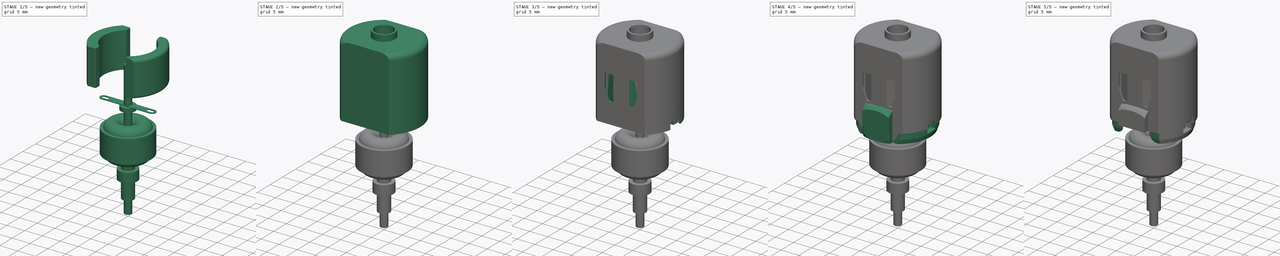
[diagram: build sequence overview — one tinted view per stage of 5, left to right]
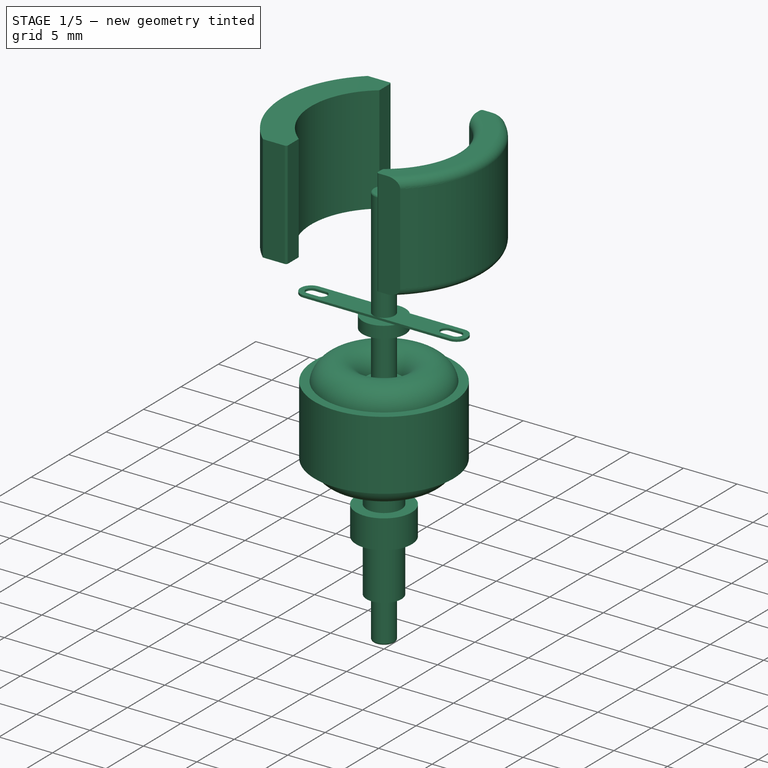
[diagram: stage 1 of 5 — iso view after this stage's code; geometry added in this stage tinted green]
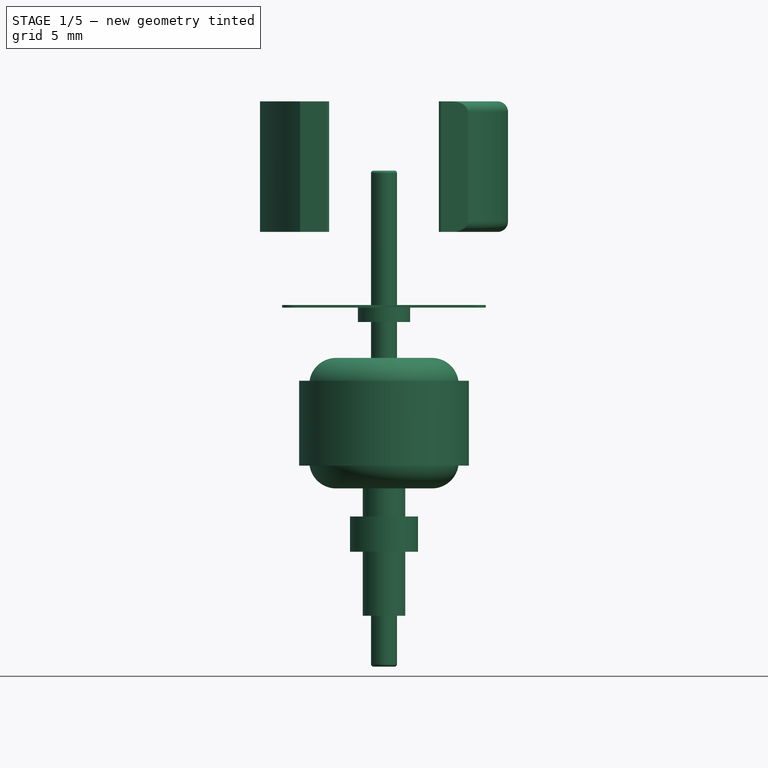
[diagram: stage 1 of 5 — front view after this stage's code; geometry added in this stage tinted green]
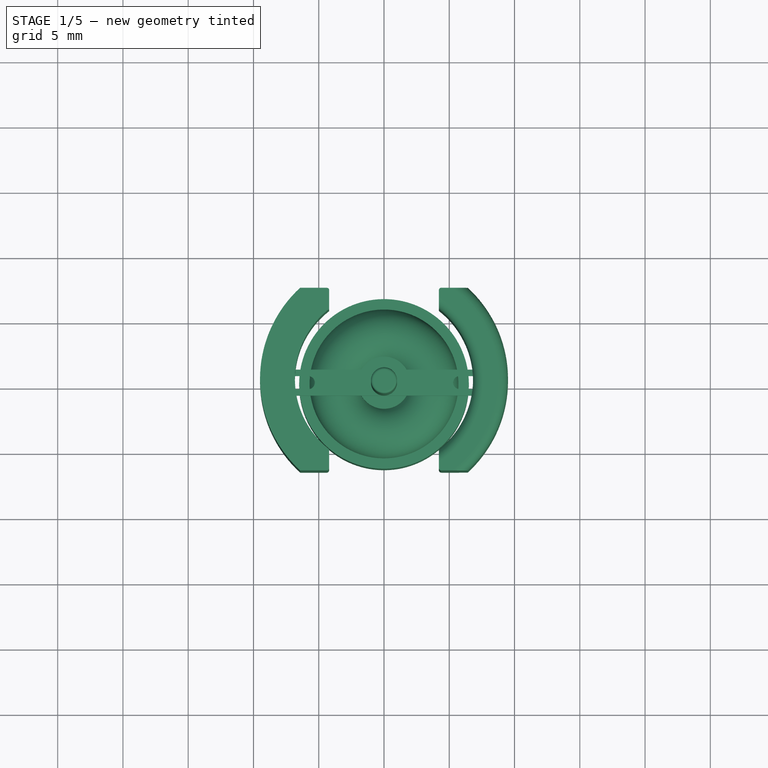
[diagram: stage 1 of 5 — top view after this stage's code; geometry added in this stage tinted green]
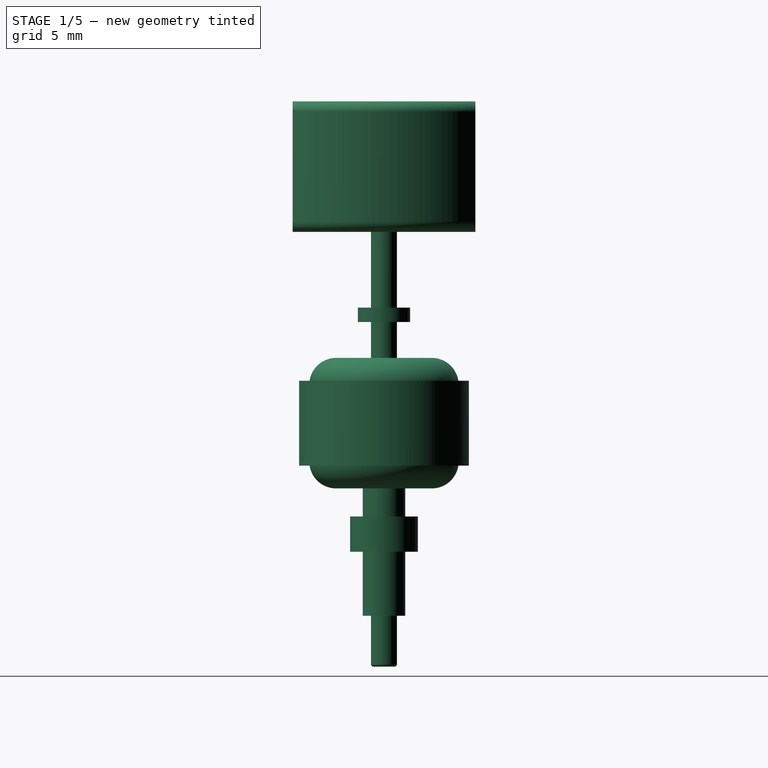
[diagram: stage 1 of 5 — right view after this stage's code; geometry added in this stage tinted green]
FCSTD DOCUMENT  (FreeCAD 0.18R4 (GitTag))
Label: 3-6V_ToyMotor
License: CreativeCommons Attribution
LicenseURL: http://creativecommons.org/licenses/by/4.0/
objects: Sketcher::SketchObject×21, PartDesign::Pocket×12, PartDesign::Body×7, PartDesign::Fillet×5, PartDesign::Pad×5, PartDesign::Revolution×4, PartDesign::Chamfer×1
note: 76 computed .brp shape members not serialized (recipe doc carries the construction recipe); baked Part::Feature solids carry a one-line shape summary decoded from their .brp

FEATURE [PartDesign::Body] Body  label="Zn-Body"
  Group = -> [Sketch,Revolution,Sketch001,Pocket,Sketch002,Pocket001,Sketch011,Sketch016,Pocket011,Chamfer,Pocket009,Sketch012,Pad,Sketch013,Pocket010,Sketch014,Pad001,Fillet001,Fillet002]
  Origin = -> Origin
  Tip = -> Fillet002
FEATURE [Sketcher::SketchObject] Sketch017
  AttachmentOffset = pos=(0,0,5.8) rot=(0,0,1;0rad)
  MapMode = 5
  Placement = pos=(0,0,5.8) rot=(0,0,1;0rad)
  Support = -> [XY_Plane003]
  sketch-geometry (8):
    g0: ArcOfCircle CenterX=0 CenterY=0 CenterZ=0 NormalX=0 NormalY=0 NormalZ=1 AngleXU=0 Radius=6.825 StartAngle=2.23367 EndAngle=4.04952
    g1: ArcOfCircle CenterX=0 CenterY=0 CenterZ=0 NormalX=0 NormalY=0 NormalZ=1 AngleXU=0 Radius=9.5 StartAngle=2.31321 EndAngle=3.96998
    g2: LineSegment StartX=-6.42262 StartY=7 StartZ=0 EndX=-4.4 EndY=7 EndZ=0
    g3: LineSegment StartX=-4.2 StartY=6.8 StartZ=0 EndX=-4.2 EndY=5.37965 EndZ=0
    g4: LineSegment StartX=-4.2 StartY=-5.37965 StartZ=0 EndX=-4.2 EndY=-6.8 EndZ=0
    g5: LineSegment StartX=-4.4 StartY=-7 StartZ=0 EndX=-6.42262 EndY=-7 EndZ=0
    g6: ArcOfCircle CenterX=-4.4 CenterY=6.8 CenterZ=0 NormalX=0 NormalY=0 NormalZ=1 AngleXU=0 Radius=0.2 StartAngle=0 EndAngle=1.5708
    g7: ArcOfCircle CenterX=-4.4 CenterY=-6.8 CenterZ=0 NormalX=0 NormalY=0 NormalZ=1 AngleXU=0 Radius=0.2 StartAngle=4.71239 EndAngle=6.28319
  constraints (21):
    c: Coincident(g0,g-1)
    c: Coincident(g1,g0)
    c: Coincident(g1,g2)
    c: Coincident(g3,g0)
    c: Vertical(g3)
    c: Coincident(g0,g4)
    c: Vertical(g4)
    c: Coincident(g5,g1)
    c: Horizontal(g5)
    c: Diameter(g0) = 13.65
    c: Diameter(g1) = 19
    c: Horizontal(g2)
    c: Tangent(g2,g6) = 1.5708
    c: Tangent(g3,g6) = 1.5708
    c: Tangent(g5,g7) = 1.5708
    c: Tangent(g4,g7) = 1.5708
    c: Radius(g7) = 0.2
    c: Equal(g7,g6)
    c: Symmetric(g6,g7,g-1)
    c: DistanceY(g1,g1) = 14
    c: DistanceX(g0,g-1) = 4.2
FEATURE [PartDesign::Pad] Pad002
  Length = 10
  Length2 = 100
  Profile = -> Sketch017
  Type = 0
FEATURE [PartDesign::Body] Body003  label="Magnet1"
  Group = -> [Sketch017,Pad002,Fillet003]
  Origin = -> Origin003
  Tip = -> Fillet003
FEATURE [Sketcher::SketchObject] Sketch018
  AttachmentOffset = pos=(0,0,5.8) rot=(0,0,1;0rad)
  MapMode = 5
  Placement = pos=(0,0,5.8) rot=(0,0,1;0rad)
  Support = -> [XY_Plane004]
  sketch-geometry (8):
    g0: ArcOfCircle CenterX=0 CenterY=0 CenterZ=0 NormalX=0 NormalY=0 NormalZ=1 AngleXU=0 Radius=9.5 StartAngle=5.4548 EndAngle=7.11157
    g1: ArcOfCircle CenterX=0 CenterY=0 CenterZ=0 NormalX=0 NormalY=0 NormalZ=1 AngleXU=0 Radius=6.825 StartAngle=5.37526 EndAngle=7.19111
    g2: LineSegment StartX=4.2 StartY=5.37965 StartZ=0 EndX=4.2 EndY=6.8 EndZ=0
    g3: LineSegment StartX=4.4 StartY=7 StartZ=0 EndX=6.42262 EndY=7 EndZ=0
    g4: LineSegment StartX=4.2 StartY=-5.37965 StartZ=0 EndX=4.2 EndY=-6.8 EndZ=0
    g5: LineSegment StartX=4.4 StartY=-7 StartZ=0 EndX=6.42262 EndY=-7 EndZ=0
    g6: ArcOfCircle CenterX=4.4 CenterY=6.8 CenterZ=0 NormalX=0 NormalY=0 NormalZ=1 AngleXU=0 Radius=0.2 StartAngle=1.5708 EndAngle=3.14159
    g7: ArcOfCircle CenterX=4.4 CenterY=-6.8 CenterZ=0 NormalX=0 NormalY=0 NormalZ=1 AngleXU=0 Radius=0.2 StartAngle=3.14159 EndAngle=4.71239
  constraints (21):
    c: Coincident(g1,g2)
    c: Vertical(g2)
    c: Coincident(g3,g0)
    c: Horizontal(g3)
    c: Coincident(g1,g4)
    c: Coincident(g5,g0)
    c: Vertical(g4)
    c: Horizontal(g5)
    c: DistanceY(g0,g0) = 14
    c: Tangent(g2,g6) = 1.5708
    c: Tangent(g3,g6) = 1.5708
    c: Tangent(g4,g7) = -1.5708
    c: Tangent(g5,g7) = -1.5708
    c: Radius(g7) = 0.2
    c: Equal(g7,g6)
    c: Symmetric(g6,g7,g-1)
    c: DistanceX(g-1,g1) = 4.2
    c: Radius(g1) = 6.825
    c: Radius(g0) = 9.5
    c: Coincident(g1,g-1)
    c: Coincident(g0,g1)
FEATURE [PartDesign::Pad] Pad003
  Length = 10
  Length2 = 100
  Profile = -> Sketch018
  Type = 0
FEATURE [PartDesign::Fillet] Fillet004
  Base = -> Pad003 [Edge13,Edge24,Edge23,Edge12]
  BaseFeature = -> Pad003
  Radius = 0.8
FEATURE [PartDesign::Body] Body004  label="Magnet2"
  Group = -> [Sketch018,Pad003,Fillet004]
  Origin = -> Origin004
  Tip = -> Fillet004
FEATURE [Sketcher::SketchObject] Sketch019
  MapMode = 5
  Placement = pos=(0,0,0) rot=(1,0,0;1.5708rad)
  Support = -> [XZ_Plane005]
  sketch-geometry (25):
    g0: LineSegment StartX=0 StartY=10.5 StartZ=0 EndX=0.8 EndY=10.5 EndZ=0
    g1: ArcOfCircle CenterX=0.8 CenterY=10.3 CenterZ=0 NormalX=0 NormalY=0 NormalZ=1 AngleXU=0 Radius=0.2 StartAngle=-1.8e-15 EndAngle=1.5708
    g2: LineSegment StartX=1 StartY=10.3 StartZ=0 EndX=1 EndY=0 EndZ=0
    g3: LineSegment StartX=1 StartY=0 StartZ=0 EndX=2 EndY=0 EndZ=0
    g4: LineSegment StartX=2 StartY=0 StartZ=0 EndX=2 EndY=-1.1 EndZ=0
    g5: LineSegment StartX=2 StartY=-1.1 StartZ=0 EndX=1 EndY=-1.1 EndZ=0
    g6: LineSegment StartX=1 StartY=-1.1 StartZ=0 EndX=1 EndY=-5.6 EndZ=0
    g7: LineSegment StartX=1 StartY=-5.6 StartZ=0 EndX=1.63 EndY=-5.6 EndZ=0
    g8: ArcOfCircle CenterX=3.665 CenterY=-5.90821 CenterZ=0 NormalX=0 NormalY=0 NormalZ=1 AngleXU=0 Radius=2.05821 StartAngle=0.150311 EndAngle=2.99128
    g9: LineSegment StartX=5.7 StartY=-5.6 StartZ=0 EndX=6.5 EndY=-5.6 EndZ=0
    g10: LineSegment StartX=6.5 StartY=-5.6 StartZ=0 EndX=6.5 EndY=-12.1 EndZ=0
    g11: LineSegment StartX=6.5 StartY=-12.1 StartZ=0 EndX=5.7 EndY=-12.1 EndZ=0
    g12: ArcOfCircle CenterX=3.665 CenterY=-11.7918 CenterZ=0 NormalX=0 NormalY=0 NormalZ=1 AngleXU=0 Radius=2.05821 StartAngle=3.2919 EndAngle=6.13287
    g13: LineSegment StartX=1.63 StartY=-12.1 StartZ=0 EndX=1.63 EndY=-16 EndZ=0
    g14: LineSegment StartX=1.63 StartY=-16 StartZ=0 EndX=2.6 EndY=-16 EndZ=0
    g15: LineSegment StartX=2.6 StartY=-16 StartZ=0 EndX=2.6 EndY=-18.7 EndZ=0
    g16: LineSegment StartX=2.6 StartY=-18.7 StartZ=0 EndX=1.63 EndY=-18.7 EndZ=0
    g17: LineSegment StartX=1.63 StartY=-18.7 StartZ=0 EndX=1.63 EndY=-23.6 EndZ=0
    g18: LineSegment StartX=1.63 StartY=-23.6 StartZ=0 EndX=1 EndY=-23.6 EndZ=0
    g19: LineSegment StartX=1 StartY=-23.6 StartZ=0 EndX=1 EndY=-27.3 EndZ=0
    g20: ArcOfCircle CenterX=0.8 CenterY=-27.3 CenterZ=0 NormalX=0 NormalY=0 NormalZ=1 AngleXU=0 Radius=0.2 StartAngle=4.71239 EndAngle=6.28319
    g21: LineSegment StartX=0.8 StartY=-27.5 StartZ=0 EndX=0 EndY=-27.5 EndZ=0
    g22: LineSegment StartX=0 StartY=-27.5 StartZ=0 EndX=0 EndY=10.5 EndZ=0
    g23: LineSegment [constr] StartX=6.5 StartY=-8.85 StartZ=0 EndX=0 EndY=-8.85 EndZ=0
    g24: LineSegment [constr] StartX=3.665 StartY=-3.85 StartZ=0 EndX=3.665 EndY=-13.85 EndZ=0
  constraints (75):
    c: PointOnObject(g0,g-2)
    c: Horizontal(g0)
    c: Tangent(g0,g1) = 1.5708
    c: Tangent(g1,g2) = 1.5708
    c: Coincident(g2,g3)
    c: Horizontal(g3)
    c: Coincident(g3,g4)
    c: Vertical(g4)
    c: Coincident(g4,g5)
    c: Horizontal(g5)
    c: Coincident(g5,g6)
    c: Vertical(g6)
    c: Coincident(g6,g7)
    c: Horizontal(g7)
    c: Horizontal(g9)
    c: Vertical(g2)
    c: Equal(g5,g3)
    c: PointOnObject(g2,g-1)
    c: Radius(g1) = 0.2
    c: DistanceY(g3,g0) = 10.5
    c: DistanceX(g0,g1) = 1
    c: DistanceX(g0,g3) = 2
    c: DistanceY(g4,g4) = 1.1
    c: Coincident(g8,g7)
    c: Coincident(g8,g9)
    c: Coincident(g9,g10)
    c: Vertical(g10)
    c: Coincident(g10,g11)
    c: Horizontal(g11)
    c: Vertical(g13)
    c: Coincident(g13,g14)
    c: Horizontal(g14)
    c: Coincident(g14,g15)
    c: Coincident(g15,g16)
    c: Horizontal(g16)
    c: Coincident(g16,g17)
    c: Vertical(g17)
    c: Coincident(g17,g18)
    c: Coincident(g18,g19)
    c: Vertical(g19)
    c: Tangent(g19,g20) = 1.5708
    c: Tangent(g20,g21) = 1.5708
    c: Coincident(g21,g22)
    c: Coincident(g22,g0)
    c: Vertical(g22)
    c: DistanceY(g10,g10) = 6.5
    c: DistanceY(g9,g4) = 4.5
    c: Horizontal(g7,g8)
    c: DistanceX(g0,g9) = 6.5
    c: Coincident(g12,g11)
    c: PointOnObject(g23,g10)
    c: PointOnObject(g23,g22)
    c: Symmetric(g10,g9,g23)
    c: Equal(g8,g12)
    c: Symmetric(g8,g12,g23)
    c: Horizontal(g12,g11)
    c: PointOnObject(g24,g8)
    c: PointOnObject(g24,g12)
    c: Vertical(g24)
    c: PointOnObject(g8,g24)
    c: DistanceY(g24,g24) = 10
    c: Vertical(g15)
    c: Horizontal(g18)
    c: Equal(g20,g1)
    c: Vertical(g1,g19)
    c: Horizontal(g21)
    c: DistanceY(g22,g22) = 38
    c: DistanceX(g21,g17) = 1.63
    c: Vertical(g16,g13)
    c: Coincident(g12,g13)
    c: DistanceY(g15,g15) = 2.7
    c: DistanceX(g21,g15) = 2.6
    c: DistanceY(g20,g18) = 3.9
    c: DistanceY(g20,g15) = 8.8
    c: DistanceX(g9,g9) = 0.8
FEATURE [PartDesign::Revolution] Revolution003
  Angle = 360
  Axis = (0,2e-16,1)
  Base = (0,0,0)
  Placement = pos=(0,0,0) rot=(1,0,0;1.5708rad)
  Profile = -> Sketch019
  ReferenceAxis = -> Sketch019 [V_Axis]
  Reversed = true
FEATURE [PartDesign::Body] Body005  label="Rotor"
  Group = -> [Sketch019,Revolution003]
  Origin = -> Origin005
  Placement = pos=(0,0,19.2) rot=(0,0,1;0rad)
  Tip = -> Revolution003
FEATURE [Sketcher::SketchObject] Sketch020
  MapMode = 5
  Support = -> [XY_Plane006]
  sketch-geometry (13):
    g0: LineSegment StartX=-6.8 StartY=1 StartZ=0 EndX=6.8 EndY=1 EndZ=0
    g1: ArcOfCircle CenterX=6.8 CenterY=0 CenterZ=0 NormalX=0 NormalY=0 NormalZ=1 AngleXU=0 Radius=1 StartAngle=4.71239 EndAngle=7.85398
    g2: LineSegment StartX=6.8 StartY=-1 StartZ=0 EndX=-6.8 EndY=-1 EndZ=0
    g3: ArcOfCircle CenterX=-6.8 CenterY=0 CenterZ=0 NormalX=0 NormalY=0 NormalZ=1 AngleXU=0 Radius=1 StartAngle=1.5708 EndAngle=4.71239
    g4: LineSegment [constr] StartX=-7.8 StartY=0 StartZ=0 EndX=7.8 EndY=0 EndZ=0
    g5: ArcOfCircle CenterX=-6.8 CenterY=0 CenterZ=0 NormalX=0 NormalY=0 NormalZ=1 AngleXU=0 Radius=0.5 StartAngle=1.5708 EndAngle=4.71239
    g6: ArcOfCircle CenterX=-5.8 CenterY=0 CenterZ=0 NormalX=0 NormalY=0 NormalZ=1 AngleXU=0 Radius=0.5 StartAngle=4.71239 EndAngle=7.85398
    g7: LineSegment StartX=-6.8 StartY=-0.5 StartZ=0 EndX=-5.8 EndY=-0.5 EndZ=0
    g8: LineSegment StartX=-6.8 StartY=0.5 StartZ=0 EndX=-5.8 EndY=0.5 EndZ=0
    g9: ArcOfCircle CenterX=5.8 CenterY=0 CenterZ=0 NormalX=0 NormalY=0 NormalZ=1 AngleXU=0 Radius=0.5 StartAngle=1.5708 EndAngle=4.71239
    g10: ArcOfCircle CenterX=6.8 CenterY=0 CenterZ=0 NormalX=0 NormalY=0 NormalZ=1 AngleXU=0 Radius=0.5 StartAngle=4.71239 EndAngle=7.85398
    g11: LineSegment StartX=5.8 StartY=-0.5 StartZ=0 EndX=6.8 EndY=-0.5 EndZ=0
    g12: LineSegment StartX=5.8 StartY=0.5 StartZ=0 EndX=6.8 EndY=0.5 EndZ=0
  constraints (31):
    c: Horizontal(g0)
    c: Tangent(g0,g1) = 1.5708
    c: Tangent(g1,g2) = 1.5708
    c: Tangent(g2,g3) = 1.5708
    c: Tangent(g3,g0) = 1.5708
    c: PointOnObject(g3,g-1)
    c: Symmetric(g3,g1,g-2)
    c: PointOnObject(g4,g3)
    c: PointOnObject(g4,g1)
    c: Horizontal(g4)
    c: PointOnObject(g-1,g4)
    c: DistanceY(g2,g0) = 2
    c: DistanceX(g4,g4) = 15.6
    c: Tangent(g5,g8) = 1.5708
    c: Tangent(g5,g7) = -1.5708
    c: Tangent(g7,g6) = -1.5708
    c: Tangent(g8,g6) = 1.5708
    c: Horizontal(g7)
    c: Equal(g5,g6)
    c: Tangent(g9,g12) = 1.5708
    c: Tangent(g9,g11) = -1.5708
    c: Tangent(g11,g10) = -1.5708
    c: Tangent(g12,g10) = 1.5708
    c: Horizontal(g11)
    c: Equal(g9,g10)
    c: Equal(g7,g11)
    c: Equal(g6,g9)
    c: Coincident(g5,g3)
    c: Coincident(g1,g10)
    c: DistanceY(g10,g10) = 1
    c: DistanceX(g12,g12) = 1
FEATURE [PartDesign::Pad] Pad004
  Length = 0.2
  Length2 = 100
  Profile = -> Sketch020
  Type = 0
FEATURE [PartDesign::Body] Body006  label="Contacts"
  Group = -> [Sketch020,Pad004]
  Origin = -> Origin006
  Placement = pos=(0,7.8,-2.2) rot=(1,0,0;1.5708rad)
  Tip = -> Pad004
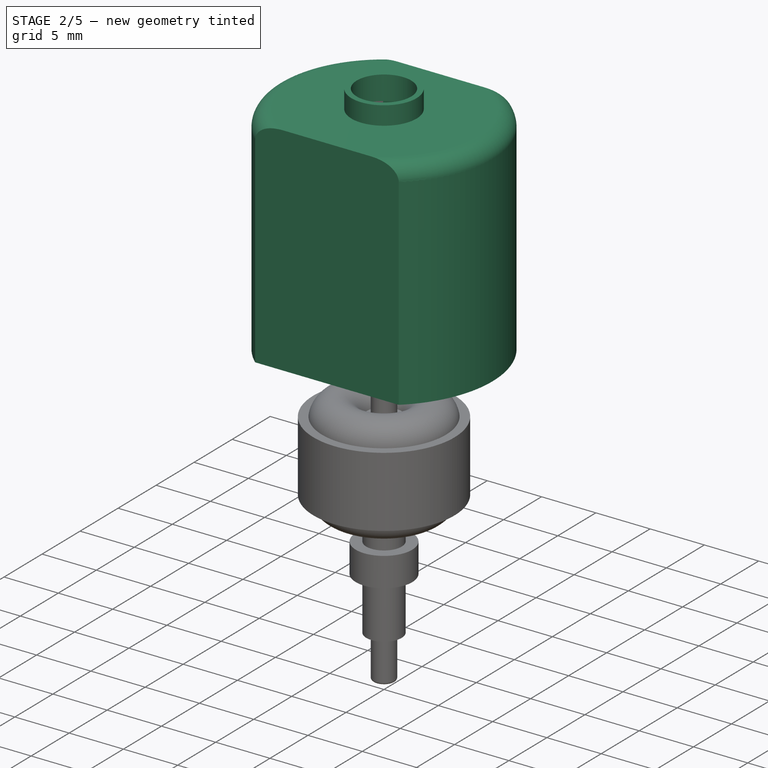
[diagram: stage 2 of 5 — iso view after this stage's code; geometry added in this stage tinted green]
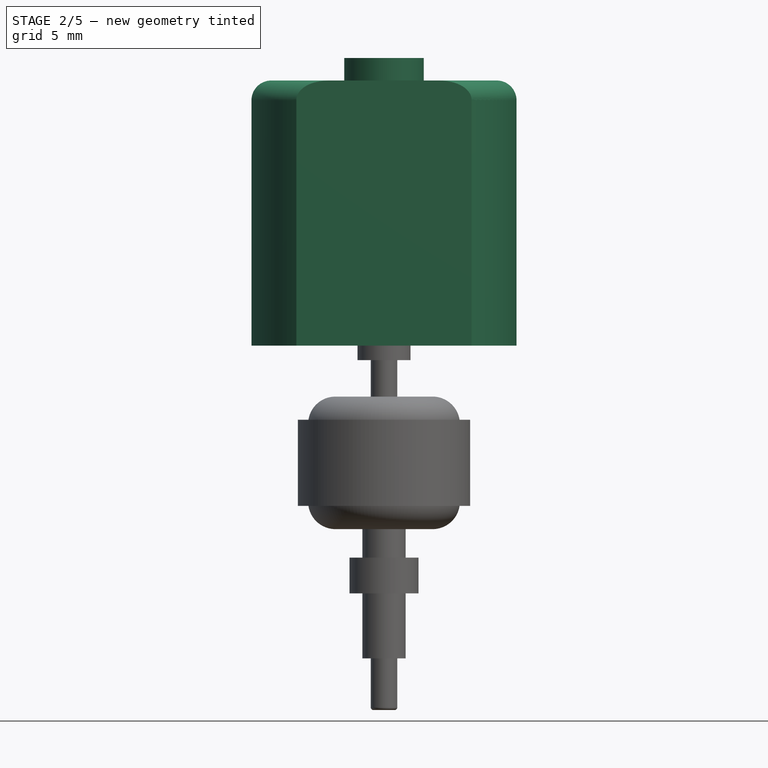
[diagram: stage 2 of 5 — front view after this stage's code; geometry added in this stage tinted green]
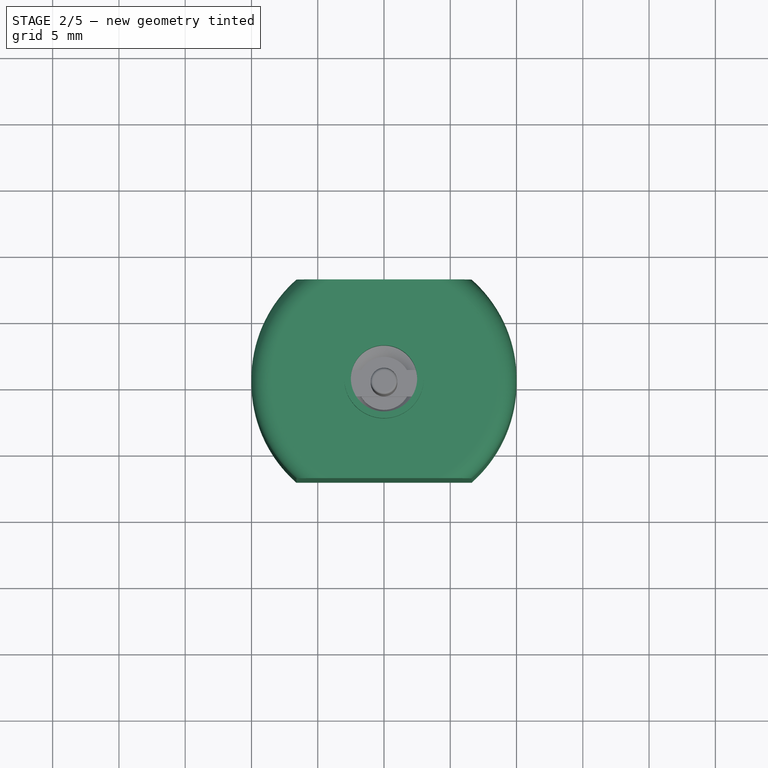
[diagram: stage 2 of 5 — top view after this stage's code; geometry added in this stage tinted green]
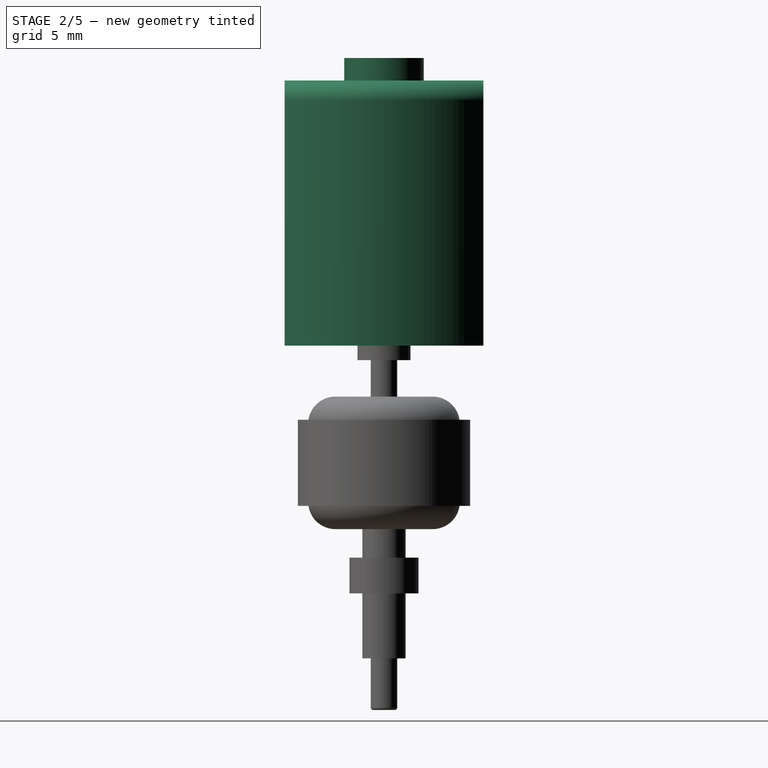
[diagram: stage 2 of 5 — right view after this stage's code; geometry added in this stage tinted green]
FEATURE [Sketcher::SketchObject] Sketch
  MapMode = 5
  Placement = pos=(0,0,0) rot=(1,0,0;1.5708rad)
  Support = -> [XZ_Plane]
  sketch-geometry (7):
    g0: LineSegment StartX=2.5 StartY=0 StartZ=0 EndX=10 EndY=0 EndZ=0
    g1: LineSegment StartX=10 StartY=0 StartZ=0 EndX=10 EndY=18.5 EndZ=0
    g2: LineSegment StartX=8.5 StartY=20 StartZ=0 EndX=3 EndY=20 EndZ=0
    g3: LineSegment StartX=3 StartY=20 StartZ=0 EndX=3 EndY=21.7 EndZ=0
    g4: LineSegment StartX=3 StartY=21.7 StartZ=0 EndX=2.5 EndY=21.7 EndZ=0
    g5: LineSegment StartX=2.5 StartY=21.7 StartZ=0 EndX=2.5 EndY=0 EndZ=0
    g6: ArcOfCircle CenterX=8.5 CenterY=18.5 CenterZ=0 NormalX=0 NormalY=0 NormalZ=1 AngleXU=0 Radius=1.5 StartAngle=0 EndAngle=1.5708
  constraints (20):
    c: PointOnObject(g0,g-1)
    c: Coincident(g0,g1)
    c: Vertical(g1)
    c: Horizontal(g2)
    c: Coincident(g2,g3)
    c: Vertical(g3)
    c: Coincident(g3,g4)
    c: Horizontal(g4)
    c: Coincident(g4,g5)
    c: Vertical(g5)
    c: Tangent(g2,g6) = -1.5708
    c: Tangent(g1,g6) = -1.5708
    c: Radius(g6) = 1.5
    c: DistanceY(g0,g2) = 20
    c: DistanceY(g3,g3) = 1.7
    c: Horizontal(g0)
    c: DistanceX(g-1,g0) = 10
    c: DistanceX(g-1,g3) = 3
    c: DistanceX(g-1,g4) = 2.5
    c: Coincident(g0,g5)
FEATURE [PartDesign::Revolution] Revolution
  Angle = 360
  Axis = (0,2e-16,1)
  Base = (0,0,0)
  Placement = pos=(0,0,0) rot=(1,0,0;1.5708rad)
  Profile = -> Sketch
  ReferenceAxis = -> Sketch [V_Axis]
  Reversed = true
FEATURE [Sketcher::SketchObject] Sketch001
  AttachmentOffset = pos=(0,0,20) rot=(0,0,1;0rad)
  MapMode = 5
  Placement = pos=(0,0,20) rot=(0,0,1;0rad)
  Support = -> [XY_Plane]
  sketch-geometry (8):
    g0: LineSegment StartX=-11 StartY=7.5 StartZ=0 EndX=11 EndY=7.5 EndZ=0
    g1: LineSegment StartX=11 StartY=7.5 StartZ=0 EndX=11 EndY=-7.5 EndZ=0
    g2: LineSegment StartX=11 StartY=-7.5 StartZ=0 EndX=-11 EndY=-7.5 EndZ=0
    g3: LineSegment StartX=-11 StartY=-7.5 StartZ=0 EndX=-11 EndY=7.5 EndZ=0
    g4: LineSegment StartX=-12 StartY=-12 StartZ=0 EndX=12 EndY=-12 EndZ=0
    g5: LineSegment StartX=12 StartY=-12 StartZ=0 EndX=12 EndY=12 EndZ=0
    g6: LineSegment StartX=12 StartY=12 StartZ=0 EndX=-12 EndY=12 EndZ=0
    g7: LineSegment StartX=-12 StartY=12 StartZ=0 EndX=-12 EndY=-12 EndZ=0
  constraints (22):
    c: Coincident(g0,g1)
    c: Coincident(g1,g2)
    c: Coincident(g2,g3)
    c: Coincident(g3,g0)
    c: Horizontal(g0)
    c: Horizontal(g2)
    c: Vertical(g1)
    c: Vertical(g3)
    c: Coincident(g4,g5)
    c: Coincident(g5,g6)
    c: Coincident(g6,g7)
    c: Coincident(g7,g4)
    c: Horizontal(g4)
    c: Horizontal(g6)
    c: Vertical(g5)
    c: Vertical(g7)
    c: Symmetric(g4,g5,g-1)
    c: Symmetric(g2,g0,g-1)
    c: DistanceX(g0,g0) = 22
    c: DistanceY(g3,g3) = 15
    c: DistanceX(g6,g6) = 24
    c: DistanceY(g4,g6) = 24
FEATURE [PartDesign::Pocket] Pocket
  BaseFeature = -> Revolution
  Length = 5
  Length2 = 100
  Placement = pos=(0,0,0) rot=(1,0,0;1.5708rad)
  Profile = -> Sketch001
  Type = 1
FEATURE [Sketcher::SketchObject] Sketch002
  MapMode = 5
  Support = -> [XY_Plane]
  sketch-geometry (4):
    g0: ArcOfCircle CenterX=0 CenterY=-9e-16 CenterZ=0 NormalX=0 NormalY=0 NormalZ=1 AngleXU=0 Radius=9.5 StartAngle=2.31321 EndAngle=3.96998
    g1: ArcOfCircle CenterX=0 CenterY=-9e-16 CenterZ=0 NormalX=0 NormalY=0 NormalZ=1 AngleXU=0 Radius=9.5 StartAngle=5.4548 EndAngle=7.11157
    g2: LineSegment StartX=-6.42262 StartY=7 StartZ=0 EndX=6.42262 EndY=7 EndZ=0
    g3: LineSegment StartX=-6.42262 StartY=-7 StartZ=0 EndX=6.42262 EndY=-7 EndZ=0
  constraints (12):
    c: Equal(g0,g1)
    c: Symmetric(g1,g1,g-1)
    c: Coincident(g1,g2)
    c: Coincident(g3,g1)
    c: Coincident(g0,g3)
    c: Coincident(g2,g0)
    c: Horizontal(g3)
    c: Horizontal(g2)
    c: Coincident(g1,g-1)
    c: Coincident(g0,g1)
    c: Diameter(g1) = 19
    c: DistanceY(g0,g0) = 14
FEATURE [PartDesign::Pocket] Pocket001
  BaseFeature = -> Pocket
  Length = 18.5
  Length2 = 100
  Placement = pos=(0,0,0) rot=(1,0,0;1.5708rad)
  Profile = -> Sketch002
  Reversed = true
  Type = 0
FEATURE [PartDesign::Body] Body002  label="Bearing"
  Group = -> [Sketch015,Revolution002]
  Origin = -> Origin002
  Placement = pos=(0,0,19.5) rot=(0,0,1;0rad)
  Tip = -> Revolution002
FEATURE [Sketcher::SketchObject] Sketch016
  AttachmentOffset = pos=(0,0,18.5) rot=(0,0,1;0rad)
  MapMode = 5
  Placement = pos=(0,0,18.5) rot=(0,0,1;0rad)
  Support = -> [XY_Plane]
  sketch-geometry (4):
    g0: ArcOfCircle CenterX=0 CenterY=3e-16 CenterZ=0 NormalX=0 NormalY=0 NormalZ=1 AngleXU=0 Radius=8.5 StartAngle=2.17399 EndAngle=4.1092
    g1: ArcOfCircle CenterX=0 CenterY=3e-16 CenterZ=0 NormalX=0 NormalY=0 NormalZ=1 AngleXU=0 Radius=8.5 StartAngle=5.31558 EndAngle=7.25079
    g2: LineSegment StartX=-4.82183 StartY=7 StartZ=0 EndX=4.82183 EndY=7 EndZ=0
    g3: LineSegment StartX=-4.82183 StartY=-7 StartZ=0 EndX=4.82183 EndY=-7 EndZ=0
  constraints (12):
    c: Equal(g0,g1)
    c: Symmetric(g1,g1,g-1)
    c: Coincident(g1,g2)
    c: Coincident(g3,g1)
    c: Coincident(g0,g3)
    c: Coincident(g2,g0)
    c: Horizontal(g3)
    c: Horizontal(g2)
    c: Coincident(g1,g-1)
    c: Coincident(g0,g1)
    c: Diameter(g1) = 17
    c: DistanceY(g0,g0) = 14
FEATURE [PartDesign::Pocket] Pocket011
  BaseFeature = -> Pocket001
  Length = 1
  Length2 = 100
  Placement = pos=(0,0,0) rot=(1,0,0;1.5708rad)
  Profile = -> Sketch016
  Reversed = true
  Type = 0
FEATURE [PartDesign::Chamfer] Chamfer
  Base = -> Pocket011 [Edge45,Edge41]
  BaseFeature = -> Pocket011
  Placement = pos=(0,0,0) rot=(1,0,0;1.5708rad)
  Size = 0.98
FEATURE [PartDesign::Fillet] Fillet003
  Base = -> Pad002 [Edge19,Edge7,Edge18,Edge6]
  BaseFeature = -> Pad002
  Radius = 0.8
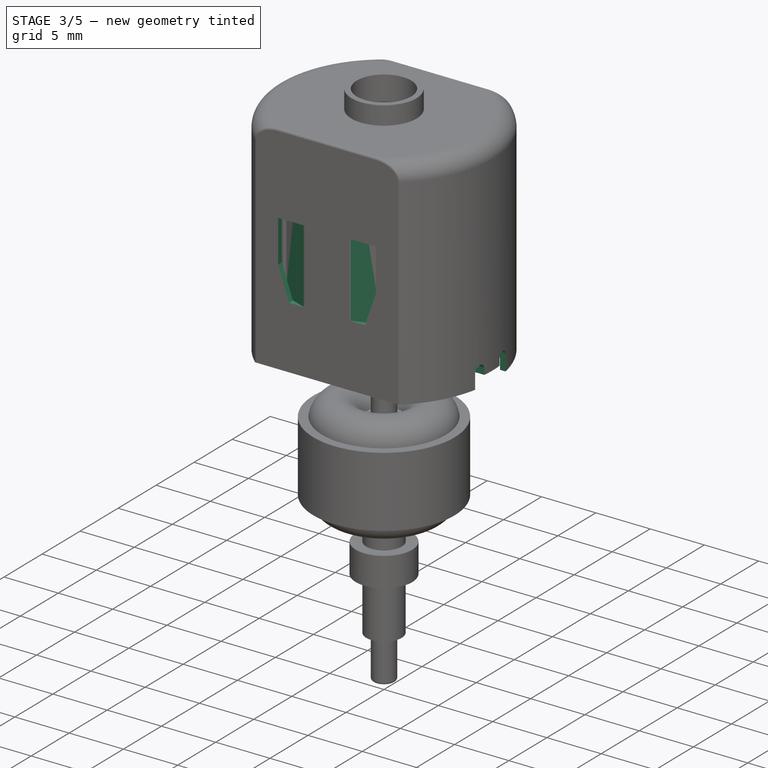
[diagram: stage 3 of 5 — iso view after this stage's code; geometry added in this stage tinted green]
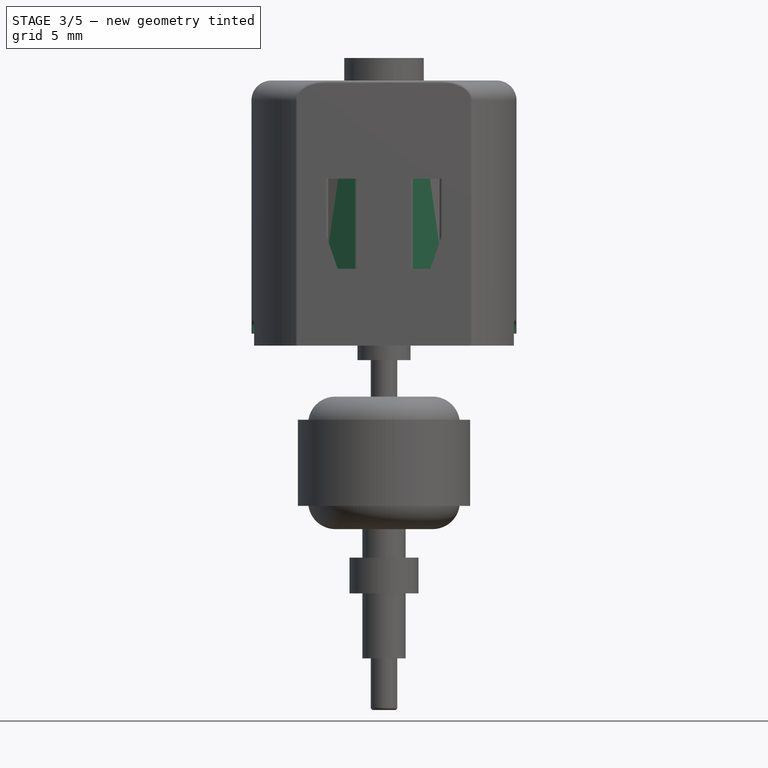
[diagram: stage 3 of 5 — front view after this stage's code; geometry added in this stage tinted green]
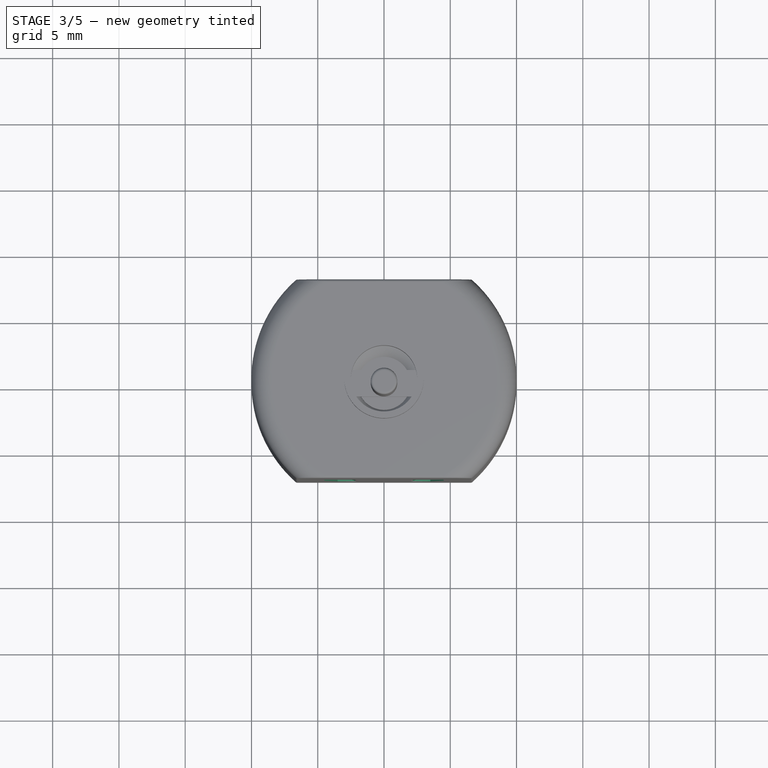
[diagram: stage 3 of 5 — top view after this stage's code; geometry added in this stage tinted green]
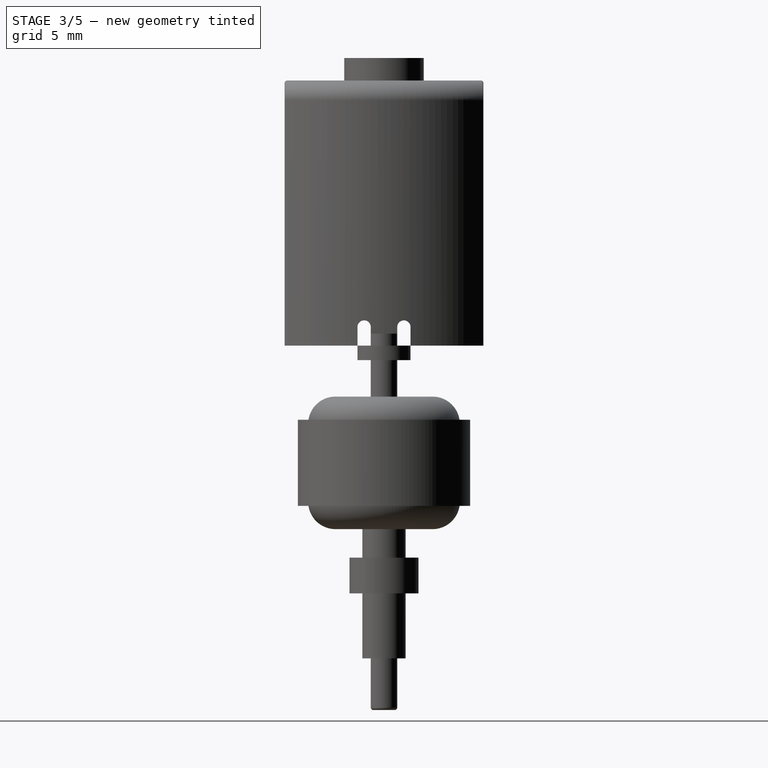
[diagram: stage 3 of 5 — right view after this stage's code; geometry added in this stage tinted green]
FEATURE [PartDesign::Pocket] Pocket009
  BaseFeature = -> Chamfer
  Length = 5
  Length2 = 100
  Midplane = true
  Placement = pos=(0,0,0) rot=(1,0,0;1.5708rad)
  Profile = -> Sketch011
  Type = 1
FEATURE [PartDesign::Pad] Pad
  BaseFeature = -> Pocket009
  Length = 0.5
  Length2 = 100
  Placement = pos=(0,0,0) rot=(1,0,0;1.5708rad)
  Profile = -> Sketch012
  Type = 0
FEATURE [PartDesign::Pocket] Pocket010
  BaseFeature = -> Pad
  Length = 0.6
  Length2 = 100
  Placement = pos=(0,0,0) rot=(1,0,0;1.5708rad)
  Profile = -> Sketch013
  Type = 0
FEATURE [PartDesign::Pad] Pad001
  BaseFeature = -> Pocket010
  Length = 6.8
  Length2 = 100
  Placement = pos=(0,0,0) rot=(1,0,0;1.5708rad)
  Profile = -> Sketch014
  Type = 0
FEATURE [PartDesign::Fillet] Fillet001
  Base = -> Pad001 [Edge131,Edge130,Edge128,Edge129,Edge122,Edge156,Edge155,Edge154,Edge157,Edge135]
  BaseFeature = -> Pad001
  Placement = pos=(0,0,0) rot=(1,0,0;1.5708rad)
  Radius = 0.2
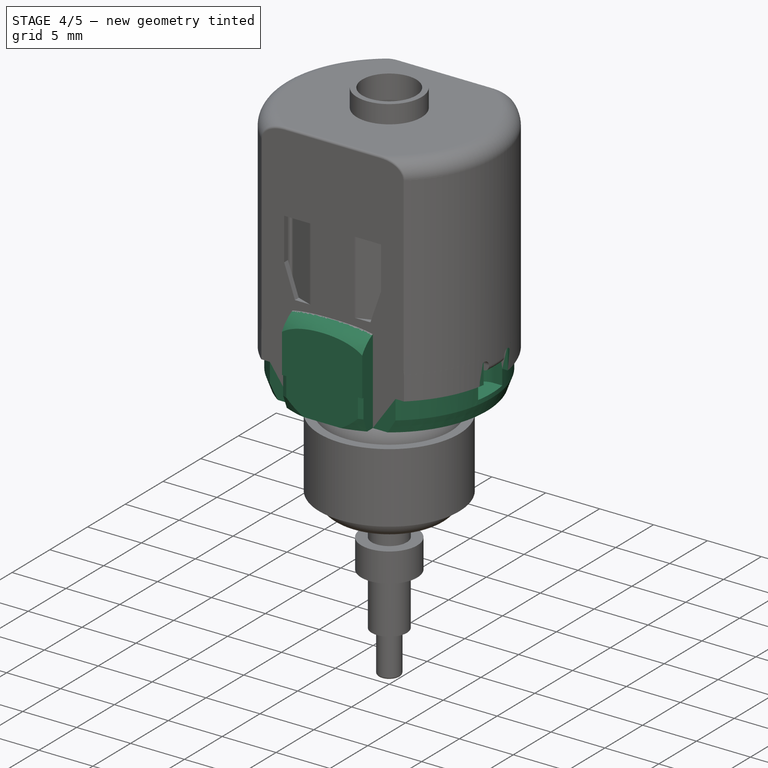
[diagram: stage 4 of 5 — iso view after this stage's code; geometry added in this stage tinted green]
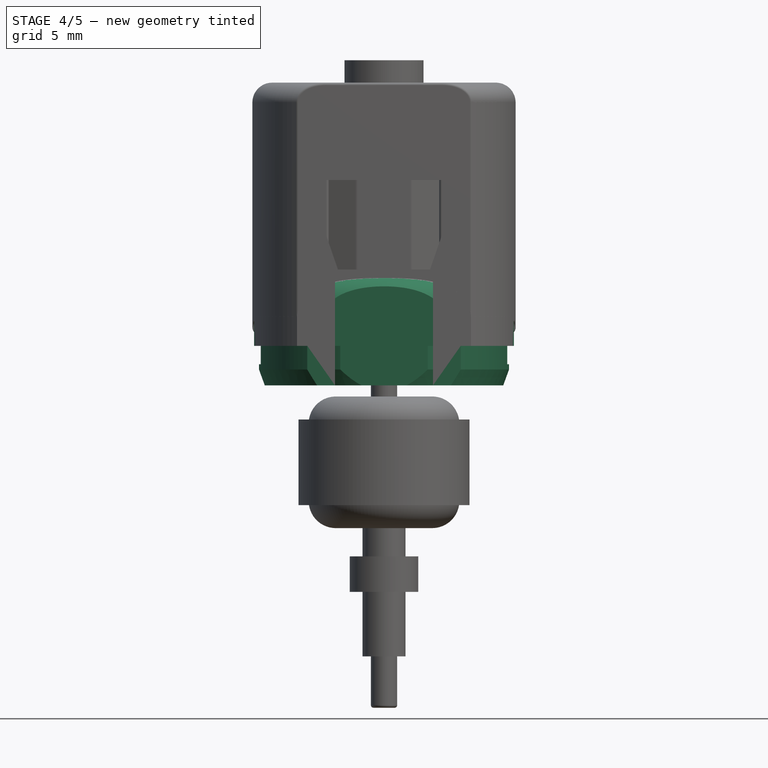
[diagram: stage 4 of 5 — front view after this stage's code; geometry added in this stage tinted green]
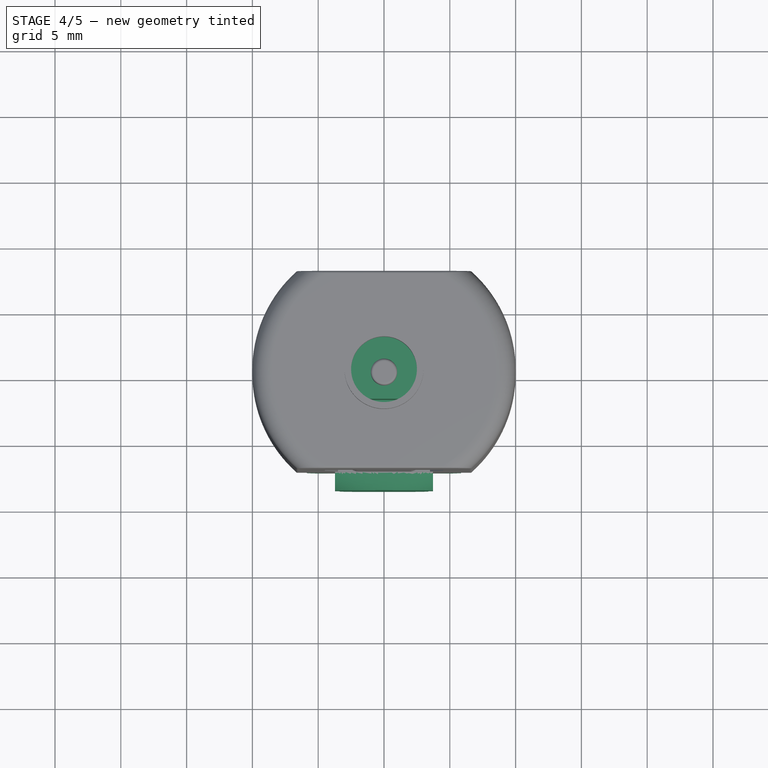
[diagram: stage 4 of 5 — top view after this stage's code; geometry added in this stage tinted green]
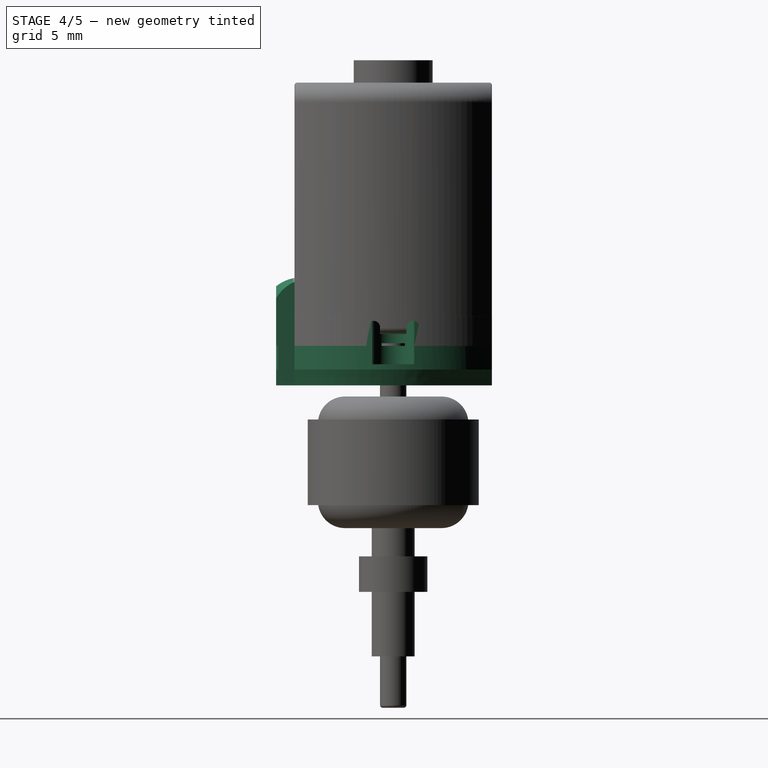
[diagram: stage 4 of 5 — right view after this stage's code; geometry added in this stage tinted green]
FEATURE [Sketcher::SketchObject] Sketch003
  MapMode = 5
  Placement = pos=(0,0,0) rot=(1,0,0;1.5708rad)
  Support = -> [XZ_Plane001]
  sketch-geometry (11):
    g0: LineSegment StartX=9.5 StartY=0 StartZ=0 EndX=9.5 EndY=-1.8 EndZ=0
    g1: LineSegment StartX=9.5 StartY=-1.8 StartZ=0 EndX=9.06324 EndY=-3 EndZ=0
    g2: LineSegment StartX=9.06324 StartY=-3 StartZ=0 EndX=0 EndY=-3 EndZ=0
    g3: LineSegment StartX=0 StartY=-3 StartZ=0 EndX=0 EndY=7.6 EndZ=0
    g4: LineSegment StartX=0 StartY=7.6 StartZ=0 EndX=4.4 EndY=7.6 EndZ=0
    g5: ArcOfCircle CenterX=4.4 CenterY=7.1 CenterZ=0 NormalX=0 NormalY=0 NormalZ=1 AngleXU=0 Radius=0.5 StartAngle=8e-16 EndAngle=1.5708
    g6: LineSegment StartX=4.9 StartY=7.1 StartZ=0 EndX=4.9 EndY=5.2 EndZ=0
    g7: LineSegment StartX=4.9 StartY=5.2 StartZ=0 EndX=7 EndY=5.2 EndZ=0
    g8: ArcOfCircle CenterX=7 CenterY=2.2 CenterZ=0 NormalX=0 NormalY=0 NormalZ=1 AngleXU=0 Radius=3 StartAngle=8e-16 EndAngle=1.5708
    g9: LineSegment StartX=10 StartY=2.2 StartZ=0 EndX=10 EndY=0 EndZ=0
    g10: LineSegment StartX=10 StartY=0 StartZ=0 EndX=9.5 EndY=0 EndZ=0
  constraints (31):
    c: PointOnObject(g0,g-1)
    c: Vertical(g0)
    c: Coincident(g0,g1)
    c: Coincident(g1,g2)
    c: PointOnObject(g2,g-2)
    c: Horizontal(g2)
    c: Coincident(g2,g3)
    c: Vertical(g3)
    c: Coincident(g3,g4)
    c: Horizontal(g4)
    c: Tangent(g4,g5) = 1.5708
    c: Tangent(g5,g6) = 1.5708
    c: Coincident(g6,g7)
    c: Horizontal(g7)
    c: Tangent(g7,g8) = 1.5708
    c: Tangent(g8,g9) = 1.5708
    c: Coincident(g9,g10)
    c: Coincident(g10,g0)
    c: Horizontal(g10)
    c: Vertical(g9)
    c: Vertical(g6)
    c: DistanceY(g1,g9) = 3
    c: DistanceY(g1,g0) = 1.2
    c: DistanceX(g2,g0) = 9.5
    c: Angle(g0,g1) = 2.79253
    c: DistanceX(g3,g8) = 10
    c: DistanceY(g1,g7) = 8.2
    c: DistanceY(g3,g3) = 10.6
    c: DistanceX(g3,g5) = 4.9
    c: Radius(g5) = 0.5
    c: Radius(g8) = 3
FEATURE [PartDesign::Revolution] Revolution001
  Angle = 360
  Axis = (0,2e-16,1)
  Base = (0,0,0)
  Placement = pos=(0,0,0) rot=(1,0,0;1.5708rad)
  Profile = -> Sketch003
  ReferenceAxis = -> Sketch003 [V_Axis]
  Reversed = true
FEATURE [Sketcher::SketchObject] Sketch004
  AttachmentOffset = pos=(0,0,7.6) rot=(0,0,1;0rad)
  MapMode = 5
  Placement = pos=(0,0,7.6) rot=(0,0,1;0rad)
  Support = -> [XY_Plane001]
  sketch-geometry (12):
    g0: LineSegment StartX=-12 StartY=12 StartZ=0 EndX=12 EndY=12 EndZ=0
    g1: LineSegment StartX=12 StartY=12 StartZ=0 EndX=12 EndY=-12 EndZ=0
    g2: LineSegment StartX=12 StartY=-12 StartZ=0 EndX=-12 EndY=-12 EndZ=0
    g3: LineSegment StartX=-12 StartY=-12 StartZ=0 EndX=-12 EndY=12 EndZ=0
    g4: LineSegment StartX=-11 StartY=7.5 StartZ=0 EndX=11 EndY=7.5 EndZ=0
    g5: LineSegment StartX=11 StartY=7.5 StartZ=0 EndX=11 EndY=-7.5 EndZ=0
    g6: LineSegment StartX=11 StartY=-7.5 StartZ=0 EndX=3.725 EndY=-7.5 EndZ=0
    g7: LineSegment StartX=-11 StartY=-7.5 StartZ=0 EndX=-11 EndY=7.5 EndZ=0
    g8: LineSegment StartX=-3.725 StartY=-7.5 StartZ=0 EndX=-3.725 EndY=-8.9 EndZ=0
    g9: LineSegment StartX=-3.725 StartY=-8.9 StartZ=0 EndX=3.725 EndY=-8.9 EndZ=0
    g10: LineSegment StartX=3.725 StartY=-8.9 StartZ=0 EndX=3.725 EndY=-7.5 EndZ=0
    g11: LineSegment StartX=-3.725 StartY=-7.5 StartZ=0 EndX=-11 EndY=-7.5 EndZ=0
  constraints (31):
    c: Coincident(g0,g1)
    c: Coincident(g1,g2)
    c: Coincident(g2,g3)
    c: Coincident(g3,g0)
    c: Horizontal(g0)
    c: Horizontal(g2)
    c: Vertical(g1)
    c: Vertical(g3)
    c: Symmetric(g2,g0,g-1)
    c: Equal(g0,g3)
    c: DistanceX(g0,g0) = 24
    c: Coincident(g4,g5)
    c: Coincident(g5,g6)
    c: Coincident(g11,g7)
    c: Coincident(g7,g4)
    c: Vertical(g5)
    c: Vertical(g8)
    c: Coincident(g8,g9)
    c: Coincident(g9,g10)
    c: Vertical(g10)
    c: Symmetric(g8,g9,g-2)
    c: Equal(g8,g10)
    c: Coincident(g6,g10)
    c: Coincident(g11,g8)
    c: Tangent(g6,g11)
    c: Symmetric(g7,g4,g-1)
    c: DistanceY(g7,g7) = 15
    c: DistanceY(g10,g10) = 1.4
    c: DistanceX(g9,g9) = 7.45
    c: DistanceX(g4,g4) = 22
    c: Symmetric(g4,g4,g-2)
FEATURE [PartDesign::Pocket] Pocket002
  BaseFeature = -> Revolution001
  Length = 5
  Length2 = 100
  Placement = pos=(0,0,0) rot=(1,0,0;1.5708rad)
  Profile = -> Sketch004
  Type = 1
FEATURE [Sketcher::SketchObject] Sketch005
  AttachmentOffset = pos=(0,0,7.6) rot=(0,0,1;0rad)
  MapMode = 5
  Placement = pos=(0,0,7.6) rot=(0,0,1;0rad)
  Support = -> [XY_Plane001]
  sketch-geometry (5):
    g0: Circle CenterX=0 CenterY=0 CenterZ=0 NormalX=0 NormalY=0 NormalZ=1 AngleXU=0 Radius=1
    g1: LineSegment StartX=-3 StartY=-2 StartZ=0 EndX=3 EndY=-2 EndZ=0
    g2: LineSegment StartX=3 StartY=-2 StartZ=0 EndX=3 EndY=-3 EndZ=0
    g3: LineSegment StartX=3 StartY=-3 StartZ=0 EndX=-3 EndY=-3 EndZ=0
    g4: LineSegment StartX=-3 StartY=-3 StartZ=0 EndX=-3 EndY=-2 EndZ=0
  constraints (13):
    c: Coincident(g0,g-1)
    c: Coincident(g1,g2)
    c: Coincident(g2,g3)
    c: Coincident(g3,g4)
    c: Coincident(g4,g1)
    c: Horizontal(g1)
    c: Vertical(g2)
    c: Vertical(g4)
    c: DistanceX(g3,g3) = 6
    c: DistanceY(g4,g4) = 1
    c: DistanceY(g1,g0) = 2
    c: Symmetric(g3,g2,g-2)
    c: Diameter(g0) = 2
FEATURE [PartDesign::Pocket] Pocket003
  BaseFeature = -> Pocket002
  Length = 5
  Length2 = 100
  Placement = pos=(0,0,0) rot=(1,0,0;1.5708rad)
  Profile = -> Sketch005
  Type = 1
FEATURE [Sketcher::SketchObject] Sketch006
  AttachmentOffset = pos=(0,0,7.6) rot=(0,0,1;0rad)
  MapMode = 5
  Placement = pos=(0,0,7.6) rot=(0,0,1;0rad)
  Support = -> [XY_Plane001]
  sketch-geometry (16):
    g0: LineSegment StartX=-12 StartY=12 StartZ=0 EndX=12 EndY=12 EndZ=0
    g1: LineSegment StartX=12 StartY=12 StartZ=0 EndX=12 EndY=-12 EndZ=0
    g2: LineSegment StartX=12 StartY=-12 StartZ=0 EndX=-12 EndY=-12 EndZ=0
    g3: LineSegment StartX=-12 StartY=-12 StartZ=0 EndX=-12 EndY=12 EndZ=0
    g4: ArcOfCircle CenterX=-8.6 CenterY=0 CenterZ=0 NormalX=0 NormalY=0 NormalZ=1 AngleXU=0 Radius=1.6 StartAngle=4.71238 EndAngle=7.85398
    g5: ArcOfCircle CenterX=8.6 CenterY=0 CenterZ=0 NormalX=0 NormalY=0 NormalZ=1 AngleXU=0 Radius=1.6 StartAngle=1.5708 EndAngle=4.7124
    g6: LineSegment StartX=-8.6 StartY=1.6 StartZ=0 EndX=-11 EndY=1.6 EndZ=0
    g7: LineSegment StartX=-8.60001 StartY=-1.6 StartZ=0 EndX=-11 EndY=-1.6 EndZ=0
    g8: LineSegment StartX=8.6 StartY=1.6 StartZ=0 EndX=11 EndY=1.6 EndZ=0
    g9: LineSegment StartX=8.60001 StartY=-1.6 StartZ=0 EndX=11 EndY=-1.6 EndZ=0
    g10: LineSegment StartX=-11 StartY=11 StartZ=0 EndX=11 EndY=11 EndZ=0
    g11: LineSegment StartX=11 StartY=11 StartZ=0 EndX=11 EndY=1.6 EndZ=0
    g12: LineSegment StartX=11 StartY=-1.6 StartZ=0 EndX=11 EndY=-11 EndZ=0
    g13: LineSegment StartX=11 StartY=-11 StartZ=0 EndX=-11 EndY=-11 EndZ=0
    g14: LineSegment StartX=-11 StartY=-11 StartZ=0 EndX=-11 EndY=-1.6 EndZ=0
    g15: LineSegment StartX=-11 StartY=1.6 StartZ=0 EndX=-11 EndY=11 EndZ=0
  constraints (48):
    c: Coincident(g0,g1)
    c: Coincident(g1,g2)
    c: Coincident(g2,g3)
    c: Coincident(g3,g0)
    c: Horizontal(g0)
    c: Horizontal(g2)
    c: Vertical(g1)
    c: Vertical(g3)
    c: Symmetric(g0,g2,g-1)
    c: Equal(g0,g3)
    c: DistanceX(g0,g0) = 24
    c: PointOnObject(g4,g-1)
    c: Coincident(g6,g4)
    c: Horizontal(g6)
    c: Coincident(g7,g4)
    c: Horizontal(g7)
    c: Horizontal(g8)
    c: Coincident(g9,g5)
    c: Coincident(g8,g5)
    c: Horizontal(g9)
    c: Tangent(g5,g8)
    c: Tangent(g9,g5)
    c: Tangent(g7,g4)
    c: Tangent(g4,g6)
    c: DistanceY(g4,g4) = 3.2
    c: Equal(g4,g5)
    c: Symmetric(g4,g5,g-2)
    c: DistanceX(g4,g5) = 17.2
    c: Horizontal(g10)
    c: Coincident(g10,g11)
    c: Coincident(g11,g8)
    c: Vertical(g11)
    c: Coincident(g9,g12)
    c: Vertical(g12)
    c: Coincident(g12,g13)
    c: Horizontal(g13)
    c: Coincident(g13,g14)
    c: Coincident(g14,g7)
    c: Vertical(g14)
    c: Equal(g13,g10)
    c: Equal(g7,g6)
    c: Equal(g6,g8)
    c: Equal(g8,g9)
    c: Coincident(g15,g6)
    c: Coincident(g15,g10)
    c: Equal(g14,g11)
    c: DistanceY(g13,g10) = 22
    c: DistanceX(g13,g13) = 22
FEATURE [PartDesign::Pocket] Pocket004
  BaseFeature = -> Pocket003
  Length = 9
  Length2 = 100
  Placement = pos=(0,0,0) rot=(1,0,0;1.5708rad)
  Profile = -> Sketch006
  Type = 0
FEATURE [PartDesign::Body] Body001  label="BasePlate"
  Group = -> [Sketch003,Revolution001,Sketch004,Pocket002,Sketch005,Pocket003,Sketch006,Pocket004,Sketch007,Pocket005,Sketch008,Pocket006,Sketch009,Pocket007,Sketch010,Pocket008,Fillet]
  Origin = -> Origin001
  Placement = pos=(0,0,0) rot=(1,0,0;3.14159rad)
  Tip = -> Fillet
FEATURE [Sketcher::SketchObject] Sketch013
  AttachmentOffset = pos=(0,0,7.5) rot=(0,0,1;0rad)
  MapMode = 5
  Placement = pos=(0,-7.5,-1.7e-15) rot=(1,0,0;1.5708rad)
  Support = -> [XZ_Plane]
  sketch-geometry (10):
    g0: LineSegment StartX=2 StartY=12.6 StartZ=0 EndX=4.5 EndY=12.6 EndZ=0
    g1: LineSegment StartX=4.5 StartY=12.6 StartZ=0 EndX=4.5 EndY=8.7 EndZ=0
    g2: LineSegment StartX=3.5 StartY=5.8 StartZ=0 EndX=2 EndY=5.8 EndZ=0
    g3: LineSegment StartX=2 StartY=5.8 StartZ=0 EndX=2 EndY=12.6 EndZ=0
    g4: LineSegment StartX=-4.5 StartY=12.6 StartZ=0 EndX=-2 EndY=12.6 EndZ=0
    g5: LineSegment StartX=-2 StartY=12.6 StartZ=0 EndX=-2 EndY=5.8 EndZ=0
    g6: LineSegment StartX=-2 StartY=5.8 StartZ=0 EndX=-3.5 EndY=5.8 EndZ=0
    g7: LineSegment StartX=-4.5 StartY=8.7 StartZ=0 EndX=-4.5 EndY=12.6 EndZ=0
    g8: LineSegment StartX=4.5 StartY=8.7 StartZ=0 EndX=3.5 EndY=5.8 EndZ=0
    g9: LineSegment StartX=-4.5 StartY=8.7 StartZ=0 EndX=-3.5 EndY=5.8 EndZ=0
  constraints (29):
    c: Coincident(g0,g1)
    c: Coincident(g2,g3)
    c: Coincident(g3,g0)
    c: Horizontal(g0)
    c: Horizontal(g2)
    c: Vertical(g1)
    c: Vertical(g3)
    c: Coincident(g4,g5)
    c: Coincident(g5,g6)
    c: Coincident(g7,g4)
    c: Horizontal(g4)
    c: Horizontal(g6)
    c: Vertical(g5)
    c: Vertical(g7)
    c: Coincident(g9,g6)
    c: Coincident(g9,g7)
    c: Coincident(g2,g8)
    c: Coincident(g1,g8)
    c: Symmetric(g5,g2,g-2)
    c: DistanceY(g6,g4) = 6.8
    c: Equal(g5,g3)
    c: Equal(g6,g2)
    c: Equal(g4,g0)
    c: Equal(g7,g1)
    c: DistanceX(g4,g4) = 2.5
    c: DistanceX(g6,g6) = 1.5
    c: DistanceY(g7,g7) = 3.9
    c: DistanceX(g4,g0) = 9
    c: DistanceY(g-1,g2) = 5.8
FEATURE [Sketcher::SketchObject] Sketch014
  AttachmentOffset = pos=(0,0,5.8) rot=(0,0,1;0rad)
  MapMode = 5
  Placement = pos=(0,0,5.8) rot=(0,0,1;0rad)
  Support = -> [XY_Plane]
  sketch-geometry (10):
    g0: LineSegment StartX=2 StartY=-7 StartZ=0 EndX=4.25526 EndY=-6.17915 EndZ=0
    g1: LineSegment StartX=4.25526 StartY=-6.17915 StartZ=0 EndX=4.42627 EndY=-6.649 EndZ=0
    g2: LineSegment StartX=4.42627 StartY=-6.649 StartZ=0 EndX=2.17101 EndY=-7.46985 EndZ=0
    g3: ArcOfCircle CenterX=2 CenterY=-7 CenterZ=0 NormalX=0 NormalY=0 NormalZ=1 AngleXU=0 Radius=0.5 StartAngle=4.71239 EndAngle=5.06145
    g4: LineSegment StartX=2 StartY=-7 StartZ=0 EndX=2 EndY=-7.5 EndZ=0
    g5: LineSegment StartX=-2 StartY=-7 StartZ=0 EndX=-2 EndY=-7.5 EndZ=0
    g6: ArcOfCircle CenterX=-2 CenterY=-7 CenterZ=0 NormalX=0 NormalY=0 NormalZ=1 AngleXU=0 Radius=0.5 StartAngle=4.36332 EndAngle=4.71239
    g7: LineSegment StartX=-2.17101 StartY=-7.46985 StartZ=0 EndX=-4.42627 EndY=-6.649 EndZ=0
    g8: LineSegment StartX=-4.42627 StartY=-6.649 StartZ=0 EndX=-4.25526 EndY=-6.17915 EndZ=0
    g9: LineSegment StartX=-4.25526 StartY=-6.17915 StartZ=0 EndX=-2 EndY=-7 EndZ=0
  constraints (27):
    c: Coincident(g0,g1)
    c: Coincident(g1,g2)
    c: Coincident(g3,g2)
    c: Tangent(g3,g2)
    c: Coincident(g4,g0)
    c: Vertical(g4)
    c: Coincident(g3,g4)
    c: PointOnObject(g3,g4)
    c: Equal(g0,g2)
    c: Perpendicular(g1,g0)
    c: DistanceY(g4,g4) = 0.5
    c: DistanceY(g3,g-1) = 7.5
    c: Equal(g1,g4)
    c: Distance(g0) = 2.4
    c: Angle(g4,g0) = 1.91986
    c: Perpendicular(g5,g6) = 1.5708
    c: Tangent(g6,g7) = 1.5708
    c: Perpendicular(g7,g8) = 4.71239
    c: Coincident(g8,g9)
    c: Coincident(g9,g5)
    c: Vertical(g5)
    c: Symmetric(g3,g5,g-2)
    c: Equal(g4,g5)
    c: Equal(g5,g8)
    c: Symmetric(g1,g7,g-2)
    c: Equal(g6,g3)
    c: DistanceX(g5,g3) = 4
FEATURE [Sketcher::SketchObject] Sketch015
  MapMode = 5
  Placement = pos=(0,0,0) rot=(1,0,0;1.5708rad)
  Support = -> [XZ_Plane002]
  sketch-geometry (8):
    g0: LineSegment StartX=1 StartY=1.8 StartZ=0 EndX=1.2 EndY=2 EndZ=0
    g1: LineSegment StartX=1.2 StartY=2 StartZ=0 EndX=2.3 EndY=2 EndZ=0
    g2: LineSegment StartX=2.3 StartY=2 StartZ=0 EndX=2.5 EndY=1.8 EndZ=0
    g3: LineSegment StartX=2.5 StartY=1.8 StartZ=0 EndX=2.5 EndY=0.2 EndZ=0
    g4: LineSegment StartX=2.5 StartY=0.2 StartZ=0 EndX=2.3 EndY=0 EndZ=0
    g5: LineSegment StartX=2.3 StartY=0 StartZ=0 EndX=1.2 EndY=0 EndZ=0
    g6: LineSegment StartX=1.2 StartY=0 StartZ=0 EndX=1 EndY=0.2 EndZ=0
    g7: LineSegment StartX=1 StartY=0.2 StartZ=0 EndX=1 EndY=1.8 EndZ=0
  constraints (24):
    c: Coincident(g0,g1)
    c: Horizontal(g1)
    c: Coincident(g1,g2)
    c: Coincident(g2,g3)
    c: Vertical(g3)
    c: Coincident(g3,g4)
    c: Coincident(g4,g5)
    c: Horizontal(g5)
    c: Coincident(g5,g6)
    c: Coincident(g6,g7)
    c: Coincident(g7,g0)
    c: Vertical(g7)
    c: Equal(g4,g6)
    c: Equal(g6,g0)
    c: Equal(g0,g2)
    c: Equal(g7,g3)
    c: Equal(g5,g1)
    c: Perpendicular(g2,g0)
    c: Angle(g4,g5) = 2.35619
    c: DistanceX(g-1,g0) = 1
    c: DistanceX(g-1,g2) = 2.5
    c: DistanceY(g4,g1) = 2
    c: PointOnObject(g5,g-1)
    c: DistanceY(g5,g6) = 0.2
FEATURE [PartDesign::Revolution] Revolution002
  Angle = 360
  Axis = (0,2e-16,1)
  Base = (0,0,0)
  Placement = pos=(0,0,0) rot=(1,0,0;1.5708rad)
  Profile = -> Sketch015
  ReferenceAxis = -> Sketch015 [V_Axis]
  Reversed = true
FEATURE [PartDesign::Fillet] Fillet002
  Base = -> Fillet001 [Edge75,Edge91,Edge14]
  BaseFeature = -> Fillet001
  Placement = pos=(0,0,0) rot=(1,0,0;1.5708rad)
  Radius = 0.48
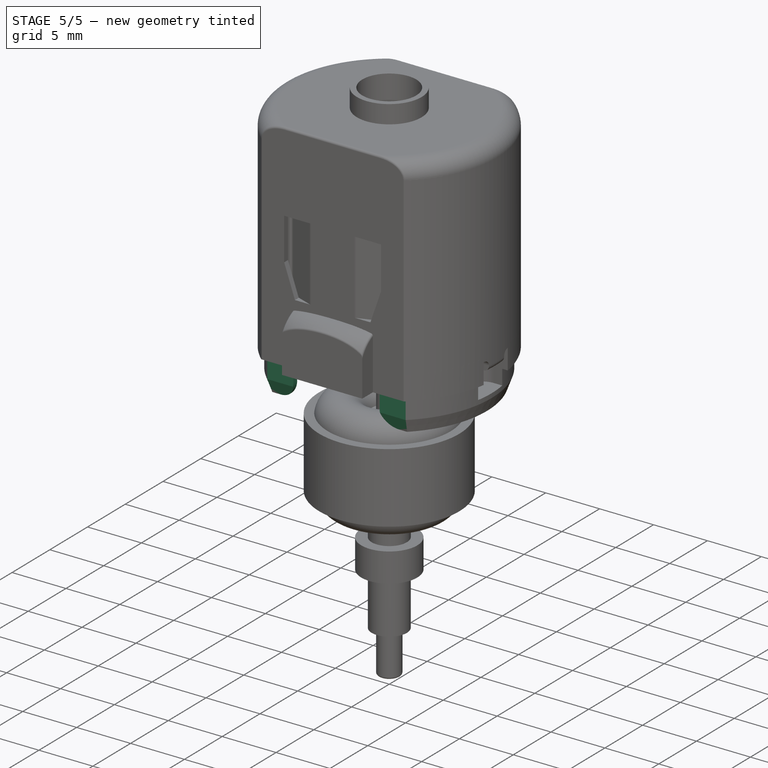
[diagram: stage 5 of 5 — iso view after this stage's code; geometry added in this stage tinted green]
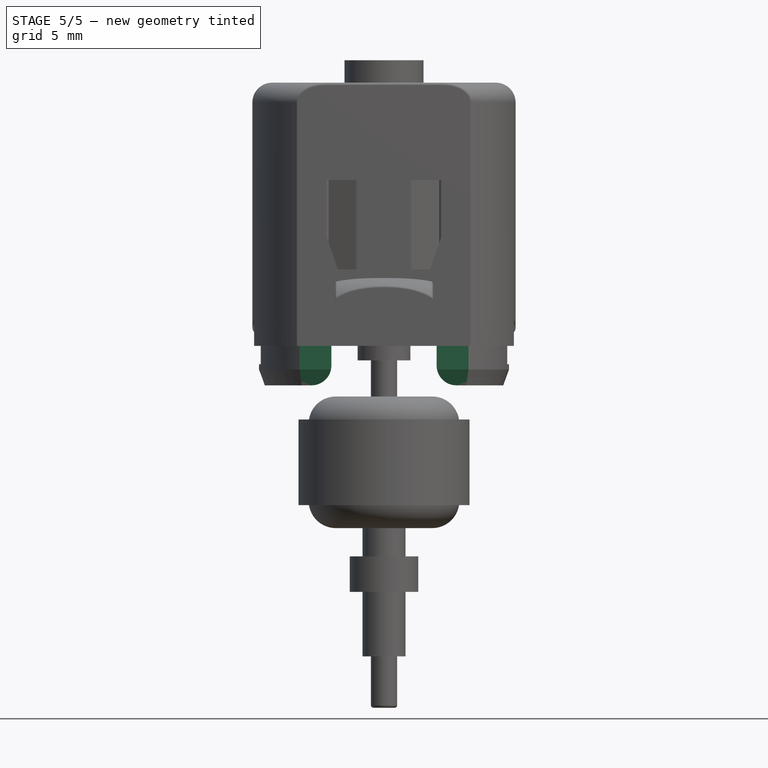
[diagram: stage 5 of 5 — front view after this stage's code; geometry added in this stage tinted green]
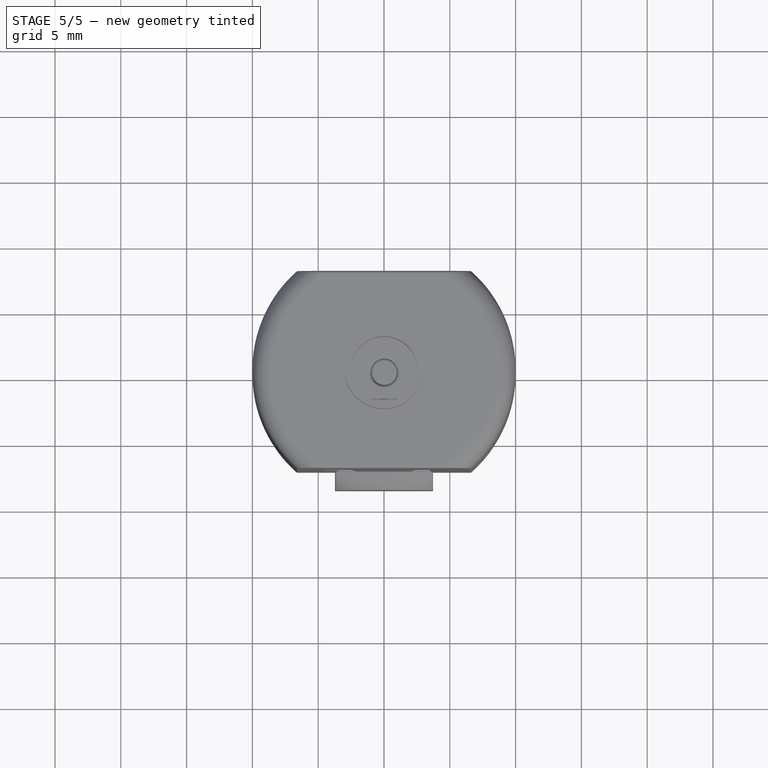
[diagram: stage 5 of 5 — top view after this stage's code; geometry added in this stage tinted green]
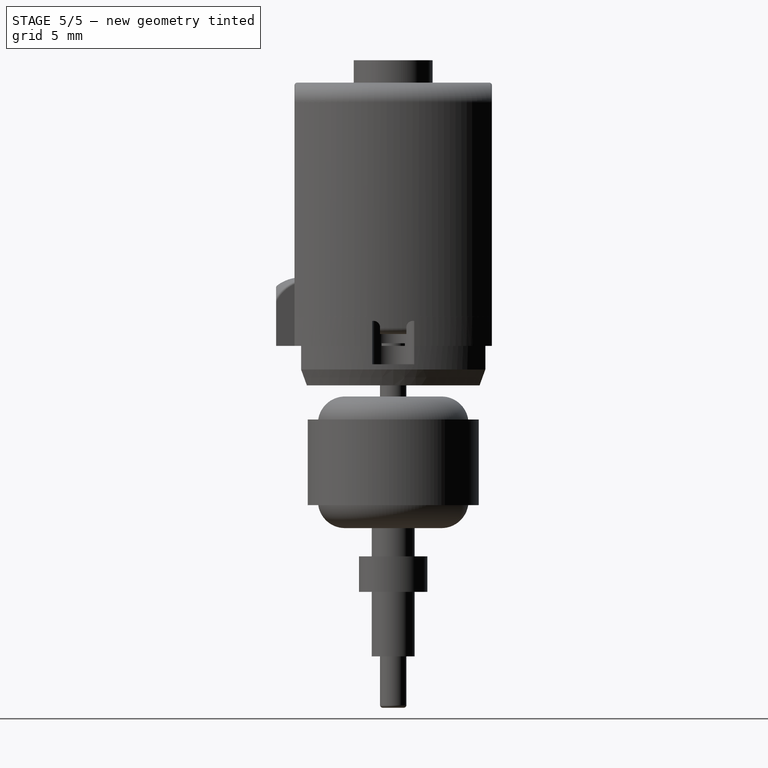
[diagram: stage 5 of 5 — right view after this stage's code; geometry added in this stage tinted green]
FEATURE [Sketcher::SketchObject] Sketch007
  AttachmentOffset = pos=(0,0,-3) rot=(0,1,0;3.14159rad)
  MapMode = 5
  Placement = pos=(0,0,-3) rot=(0,1,0;3.14159rad)
  Support = -> [XY_Plane001]
  sketch-geometry (14):
    g0: ArcOfCircle CenterX=-11.25 CenterY=0 CenterZ=0 NormalX=0 NormalY=0 NormalZ=1 AngleXU=0 Radius=5 StartAngle=5.4317 EndAngle=7.13467
    g1: ArcOfCircle CenterX=11.25 CenterY=0 CenterZ=0 NormalX=0 NormalY=0 NormalZ=1 AngleXU=0 Radius=5 StartAngle=2.29011 EndAngle=3.99308
    g2: ArcOfCircle CenterX=0 CenterY=0 CenterZ=0 NormalX=0 NormalY=0 NormalZ=1 AngleXU=0 Radius=8.8 StartAngle=2.31055 EndAngle=2.69996
    g3: ArcOfCircle CenterX=0 CenterY=0 CenterZ=0 NormalX=0 NormalY=0 NormalZ=1 AngleXU=0 Radius=8.8 StartAngle=0.441637 EndAngle=0.831045
    g4: ArcOfCircle CenterX=0 CenterY=0 CenterZ=0 NormalX=0 NormalY=0 NormalZ=1 AngleXU=0 Radius=8.8 StartAngle=5.45214 EndAngle=5.84155
    g5: ArcOfCircle CenterX=0 CenterY=0 CenterZ=0 NormalX=0 NormalY=0 NormalZ=1 AngleXU=0 Radius=8.8 StartAngle=3.58323 EndAngle=3.97264
    g6: LineSegment StartX=-5.93212 StartY=6.5 StartZ=0 EndX=5.93212 EndY=6.5 EndZ=0
    g7: LineSegment StartX=-5.93212 StartY=-6.5 StartZ=0 EndX=-3.7 EndY=-6.5 EndZ=0
    g8: LineSegment StartX=-3.7 StartY=-6.5 StartZ=0 EndX=-3.7 EndY=-5 EndZ=0
    g9: LineSegment StartX=-3.7 StartY=-5 StartZ=0 EndX=-0.5 EndY=-4 EndZ=0
    g10: LineSegment StartX=-0.5 StartY=-4 StartZ=0 EndX=0.5 EndY=-4 EndZ=0
    g11: LineSegment StartX=0.5 StartY=-4 StartZ=0 EndX=3.7 EndY=-5 EndZ=0
    g12: LineSegment StartX=3.7 StartY=-5 StartZ=0 EndX=3.7 EndY=-6.5 EndZ=0
    g13: LineSegment StartX=3.7 StartY=-6.5 StartZ=0 EndX=5.93212 EndY=-6.5 EndZ=0
  constraints (40):
    c: PointOnObject(g0,g-1)
    c: Coincident(g2,g-1)
    c: Coincident(g2,g0)
    c: Coincident(g3,g2)
    c: Coincident(g3,g1)
    c: Coincident(g4,g2)
    c: Coincident(g4,g1)
    c: Coincident(g5,g2)
    c: Coincident(g5,g0)
    c: Equal(g2,g3)
    c: Equal(g3,g4)
    c: Coincident(g6,g3)
    c: Horizontal(g6)
    c: Equal(g0,g1)
    c: Diameter(g3) = 17.6
    c: Coincident(g6,g2)
    c: Coincident(g5,g7)
    c: Horizontal(g7)
    c: Coincident(g7,g8)
    c: Coincident(g8,g9)
    c: Coincident(g9,g10)
    c: Coincident(g10,g11)
    c: Coincident(g11,g12)
    c: Vertical(g12)
    c: Coincident(g12,g13)
    c: Coincident(g13,g4)
    c: Horizontal(g13)
    c: Symmetric(g9,g10,g-2)
    c: Vertical(g8)
    c: Symmetric(g0,g1,g-2)
    c: Symmetric(g5,g2,g-1)
    c: DistanceY(g5,g2) = 13
    c: Symmetric(g8,g11,g-2)
    c: DistanceX(g10,g10) = 1
    c: DistanceY(g10,g2) = 4
    c: Equal(g8,g12)
    c: Radius(g0) = 5
    c: DistanceX(g0,g1) = 22.5
    c: DistanceX(g7,g12) = 7.4
    c: DistanceY(g12,g12) = 1.5
FEATURE [PartDesign::Pocket] Pocket005
  BaseFeature = -> Pocket004
  Length = 6.7
  Length2 = 100
  Placement = pos=(0,0,0) rot=(1,0,0;1.5708rad)
  Profile = -> Sketch007
  Type = 0
FEATURE [Sketcher::SketchObject] Sketch008
  MapMode = 5
  Placement = pos=(0,0,0) rot=(1,0,0;1.5708rad)
  Support = -> [XZ_Plane001]
  sketch-geometry (10):
    g0: LineSegment StartX=-4 StartY=0 StartZ=0 EndX=4 EndY=0 EndZ=0
    g1: LineSegment StartX=4 StartY=0 StartZ=0 EndX=4 EndY=-1.5 EndZ=0
    g2: ArcOfCircle CenterX=5.5 CenterY=-1.5 CenterZ=0 NormalX=0 NormalY=0 NormalZ=1 AngleXU=0 Radius=1.5 StartAngle=3.14159 EndAngle=4.71239
    g3: LineSegment StartX=5.5 StartY=-3 StartZ=0 EndX=11 EndY=-3 EndZ=0
    g4: LineSegment StartX=11 StartY=-3 StartZ=0 EndX=11 EndY=-4 EndZ=0
    g5: LineSegment StartX=11 StartY=-4 StartZ=0 EndX=-11 EndY=-4 EndZ=0
    g6: LineSegment StartX=-11 StartY=-4 StartZ=0 EndX=-11 EndY=-3 EndZ=0
    g7: LineSegment StartX=-11 StartY=-3 StartZ=0 EndX=-5.5 EndY=-3 EndZ=0
    g8: ArcOfCircle CenterX=-5.5 CenterY=-1.5 CenterZ=0 NormalX=0 NormalY=0 NormalZ=1 AngleXU=0 Radius=1.5 StartAngle=4.71239 EndAngle=6.28319
    g9: LineSegment StartX=-4 StartY=-1.5 StartZ=0 EndX=-4 EndY=0 EndZ=0
  constraints (26):
    c: PointOnObject(g0,g-1)
    c: Coincident(g0,g1)
    c: Vertical(g1)
    c: Tangent(g1,g2) = -1.5708
    c: Tangent(g2,g3) = -1.5708
    c: Coincident(g3,g4)
    c: Vertical(g4)
    c: Coincident(g4,g5)
    c: Coincident(g5,g6)
    c: Vertical(g6)
    c: Coincident(g6,g7)
    c: Horizontal(g7)
    c: Tangent(g7,g8) = -1.5708
    c: Tangent(g8,g9) = -1.5708
    c: Coincident(g9,g0)
    c: Symmetric(g0,g0,g-2)
    c: Vertical(g9)
    c: Horizontal(g3)
    c: DistanceX(g0,g0) = 8
    c: Equal(g9,g1)
    c: DistanceY(g3,g0) = 3
    c: Equal(g2,g8)
    c: DistanceX(g5,g5) = 22
    c: DistanceY(g4,g4) = 1
    c: Radius(g8) = 1.5
    c: Symmetric(g4,g5,g-2)
FEATURE [PartDesign::Pocket] Pocket006
  BaseFeature = -> Pocket005
  Length = 5
  Length2 = 100
  Midplane = true
  Placement = pos=(0,0,0) rot=(1,0,0;1.5708rad)
  Profile = -> Sketch008
  Type = 1
FEATURE [Sketcher::SketchObject] Sketch009
  AttachmentOffset = pos=(0,0,3.7) rot=(0,1,0;3.14159rad)
  MapMode = 5
  Placement = pos=(0,0,3.7) rot=(0,1,0;3.14159rad)
  Support = -> [XY_Plane001]
  sketch-geometry (7):
    g0: LineSegment StartX=-2 StartY=3 StartZ=0 EndX=2 EndY=3 EndZ=0
    g1: LineSegment StartX=3 StartY=2 StartZ=0 EndX=3 EndY=-2 EndZ=0
    g2: LineSegment StartX=3 StartY=-2 StartZ=0 EndX=-3 EndY=-2 EndZ=0
    g3: LineSegment StartX=-3 StartY=-2 StartZ=0 EndX=-3 EndY=2 EndZ=0
    g4: ArcOfCircle CenterX=-2 CenterY=2 CenterZ=0 NormalX=0 NormalY=0 NormalZ=1 AngleXU=0 Radius=1 StartAngle=1.5708 EndAngle=3.14159
    g5: ArcOfCircle CenterX=2 CenterY=2 CenterZ=0 NormalX=0 NormalY=0 NormalZ=1 AngleXU=0 Radius=1 StartAngle=0 EndAngle=1.5708
    g6: Circle CenterX=0 CenterY=0 CenterZ=0 NormalX=0 NormalY=0 NormalZ=1 AngleXU=0 Radius=1.999
  constraints (17):
    c: Coincident(g1,g2)
    c: Coincident(g2,g3)
    c: Horizontal(g0)
    c: Vertical(g1)
    c: Vertical(g3)
    c: Tangent(g3,g4) = 1.5708
    c: Tangent(g0,g4) = 1.5708
    c: Tangent(g0,g5) = 1.5708
    c: Tangent(g1,g5) = 1.5708
    c: Equal(g5,g4)
    c: Radius(g5) = 1
    c: Symmetric(g2,g1,g-2)
    c: DistanceX(g2,g2) = 6
    c: DistanceY(g2,g-1) = 2
    c: DistanceY(g-1,g0) = 3
    c: Diameter(g6) = 3.998
    c: Coincident(g6,g-1)
FEATURE [PartDesign::Pocket] Pocket007
  BaseFeature = -> Pocket006
  Length = 1.5
  Length2 = 100
  Placement = pos=(0,0,0) rot=(1,0,0;1.5708rad)
  Profile = -> Sketch009
  Type = 0
FEATURE [Sketcher::SketchObject] Sketch010
  MapMode = 5
  Placement = pos=(0,0,0) rot=(0.57735,0.57735,0.57735;2.0944rad)
  Support = -> [YZ_Plane001]
  sketch-geometry (10):
    g0: LineSegment StartX=-6.56324 StartY=-3 StartZ=0 EndX=6.56324 EndY=-3 EndZ=0
    g1: LineSegment StartX=6.56324 StartY=-3 StartZ=0 EndX=7 EndY=-1.8 EndZ=0
    g2: LineSegment StartX=7 StartY=-1.8 StartZ=0 EndX=7 EndY=0 EndZ=0
    g3: LineSegment StartX=7 StartY=0 StartZ=0 EndX=12 EndY=0 EndZ=0
    g4: LineSegment StartX=12 StartY=0 StartZ=0 EndX=12 EndY=-4 EndZ=0
    g5: LineSegment StartX=12 StartY=-4 StartZ=0 EndX=-12 EndY=-4 EndZ=0
    g6: LineSegment StartX=-12 StartY=-4 StartZ=0 EndX=-12 EndY=0 EndZ=0
    g7: LineSegment StartX=-12 StartY=0 StartZ=0 EndX=-7 EndY=0 EndZ=0
    g8: LineSegment StartX=-7 StartY=0 StartZ=0 EndX=-7 EndY=-1.8 EndZ=0
    g9: LineSegment StartX=-7 StartY=-1.8 StartZ=0 EndX=-6.56324 EndY=-3 EndZ=0
  constraints (28):
    c: Coincident(g1,g2)
    c: PointOnObject(g2,g-1)
    c: Vertical(g2)
    c: Coincident(g2,g3)
    c: PointOnObject(g3,g-1)
    c: Coincident(g3,g4)
    c: Vertical(g4)
    c: Coincident(g4,g5)
    c: Horizontal(g5)
    c: Coincident(g5,g6)
    c: Vertical(g6)
    c: Coincident(g6,g7)
    c: PointOnObject(g7,g-1)
    c: Horizontal(g7)
    c: Coincident(g7,g8)
    c: Coincident(g8,g9)
    c: Coincident(g0,g1)
    c: Coincident(g9,g0)
    c: Angle(g2,g1) = 2.79253
    c: Symmetric(g0,g0,g-2)
    c: Vertical(g8)
    c: Symmetric(g8,g1,g-2)
    c: DistanceY(g0,g3) = 3
    c: DistanceY(g0,g1) = 1.2
    c: DistanceX(g7,g2) = 14
    c: Equal(g7,g3)
    c: DistanceX(g5,g5) = 24
    c: DistanceY(g6,g6) = 4
FEATURE [PartDesign::Pocket] Pocket008
  BaseFeature = -> Pocket007
  Length = 5
  Length2 = 100
  Midplane = true
  Placement = pos=(0,0,0) rot=(1,0,0;1.5708rad)
  Profile = -> Sketch010
  Type = 1
FEATURE [Sketcher::SketchObject] Sketch011
  MapMode = 5
  Placement = pos=(0,0,0) rot=(0.57735,0.57735,0.57735;2.0944rad)
  Support = -> [YZ_Plane]
  sketch-geometry (8):
    g0: ArcOfCircle CenterX=-1.5 CenterY=1.4 CenterZ=0 NormalX=0 NormalY=0 NormalZ=1 AngleXU=0 Radius=0.5 StartAngle=6.28318 EndAngle=9.42478
    g1: ArcOfCircle CenterX=1.5 CenterY=1.4 CenterZ=0 NormalX=0 NormalY=0 NormalZ=1 AngleXU=0 Radius=0.5 StartAngle=6.28319 EndAngle=9.42478
    g2: LineSegment StartX=-2 StartY=1.4 StartZ=0 EndX=-2 EndY=-0.5 EndZ=0
    g3: LineSegment StartX=-1 StartY=1.4 StartZ=0 EndX=-1 EndY=0.9 EndZ=0
    g4: LineSegment StartX=1 StartY=1.4 StartZ=0 EndX=1 EndY=0.9 EndZ=0
    g5: LineSegment StartX=2 StartY=1.4 StartZ=0 EndX=2 EndY=-0.5 EndZ=0
    g6: LineSegment StartX=-1 StartY=0.9 StartZ=0 EndX=1 EndY=0.9 EndZ=0
    g7: LineSegment StartX=-2 StartY=-0.5 StartZ=0 EndX=2 EndY=-0.5 EndZ=0
  constraints (25):
    c: Coincident(g2,g0)
    c: Vertical(g2)
    c: Coincident(g3,g0)
    c: Vertical(g3)
    c: Coincident(g4,g1)
    c: Vertical(g4)
    c: Coincident(g5,g1)
    c: Vertical(g5)
    c: Coincident(g6,g3)
    c: Coincident(g6,g4)
    c: Horizontal(g6)
    c: Symmetric(g0,g1,g-2)
    c: Equal(g0,g1)
    c: Tangent(g2,g0)
    c: Tangent(g0,g3)
    c: Tangent(g4,g1)
    c: Tangent(g1,g5)
    c: Coincident(g7,g2)
    c: Coincident(g7,g5)
    c: Horizontal(g7)
    c: DistanceX(g6,g6) = 2
    c: DistanceX(g7,g7) = 4
    c: DistanceY(g4,g4) = 0.5
    c: DistanceY(g-1,g0) = 1.4
    c: DistanceY(g2,g-1) = 0.5
FEATURE [Sketcher::SketchObject] Sketch012
  AttachmentOffset = pos=(0,0,1.4) rot=(0,1,0;3.14159rad)
  MapMode = 5
  Placement = pos=(0,0,1.4) rot=(0,1,0;3.14159rad)
  Support = -> [XY_Plane]
  sketch-geometry (8):
    g0: LineSegment StartX=9.44722 StartY=1 StartZ=0 EndX=8.1 EndY=1 EndZ=0
    g1: LineSegment StartX=8.1 StartY=1 StartZ=0 EndX=8.1 EndY=-1 EndZ=0
    g2: LineSegment StartX=8.1 StartY=-1 StartZ=0 EndX=9.44722 EndY=-1 EndZ=0
    g3: LineSegment StartX=-9.44722 StartY=1 StartZ=0 EndX=-8.1 EndY=1 EndZ=0
    g4: LineSegment StartX=-8.1 StartY=1 StartZ=0 EndX=-8.1 EndY=-1 EndZ=0
    g5: LineSegment StartX=-8.1 StartY=-1 StartZ=0 EndX=-9.44722 EndY=-1 EndZ=0
    g6: ArcOfCircle CenterX=0 CenterY=0 CenterZ=0 NormalX=0 NormalY=0 NormalZ=1 AngleXU=0 Radius=9.5 StartAngle=3.03613 EndAngle=3.24705
    g7: ArcOfCircle CenterX=0 CenterY=0 CenterZ=0 NormalX=0 NormalY=0 NormalZ=1 AngleXU=0 Radius=9.5 StartAngle=6.17773 EndAngle=6.38864
  constraints (22):
    c: Coincident(g0,g1)
    c: Coincident(g1,g2)
    c: Horizontal(g0)
    c: Horizontal(g2)
    c: DistanceY(g1,g1) = 2
    c: Symmetric(g1,g0,g-1)
    c: Coincident(g3,g4)
    c: Coincident(g4,g5)
    c: Horizontal(g3)
    c: Horizontal(g5)
    c: Vertical(g4)
    c: Equal(g1,g4)
    c: Symmetric(g3,g0,g-2)
    c: Equal(g3,g0)
    c: DistanceX(g4,g1) = 16.2
    c: Coincident(g6,g-1)
    c: Coincident(g6,g5)
    c: Coincident(g6,g3)
    c: Coincident(g7,g6)
    c: Coincident(g7,g0)
    c: Coincident(g7,g2)
    c: Diameter(g7) = 19
FEATURE [PartDesign::Fillet] Fillet
  Base = -> Pocket008 [Edge203,Edge132,Edge135,Edge49,Edge59,Edge55,Edge119,Edge57,Edge58,Edge56,Edge238]
  BaseFeature = -> Pocket008
  Placement = pos=(0,0,0) rot=(1,0,0;1.5708rad)
  Radius = 0.2
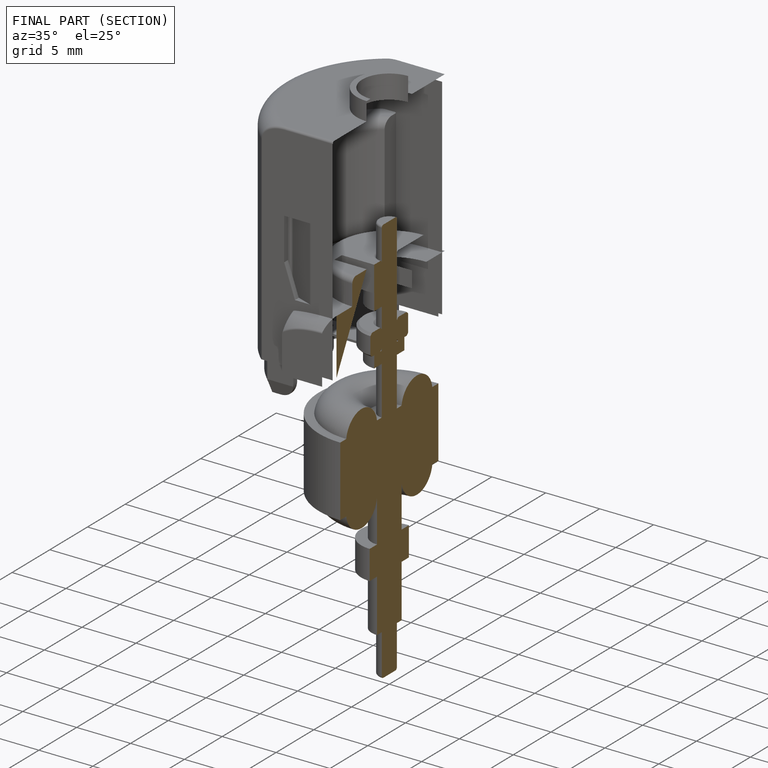
[diagram: finished part — half-section view (interior)]
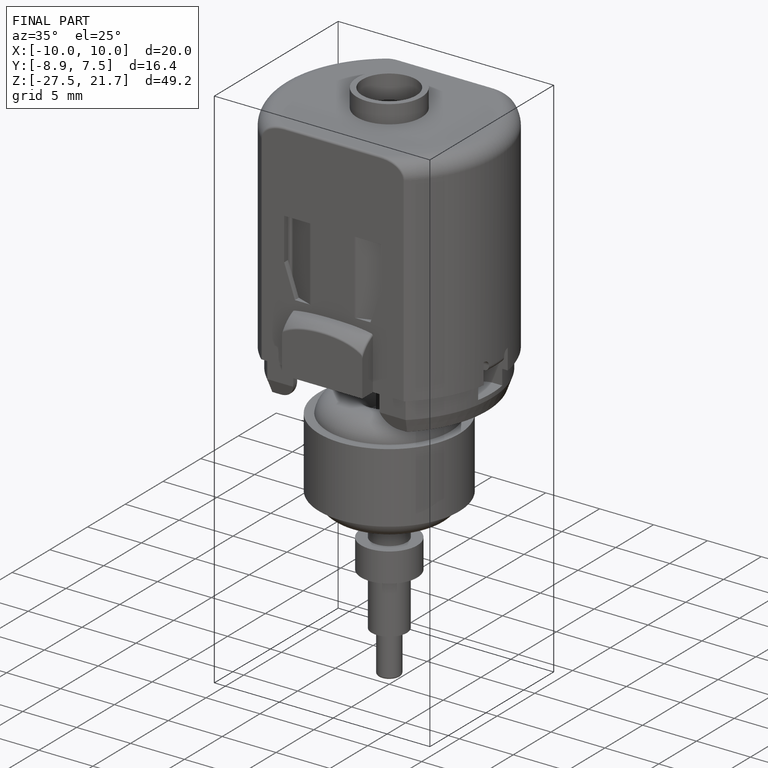
[diagram: finished part — iso view with bounding-box wireframe]
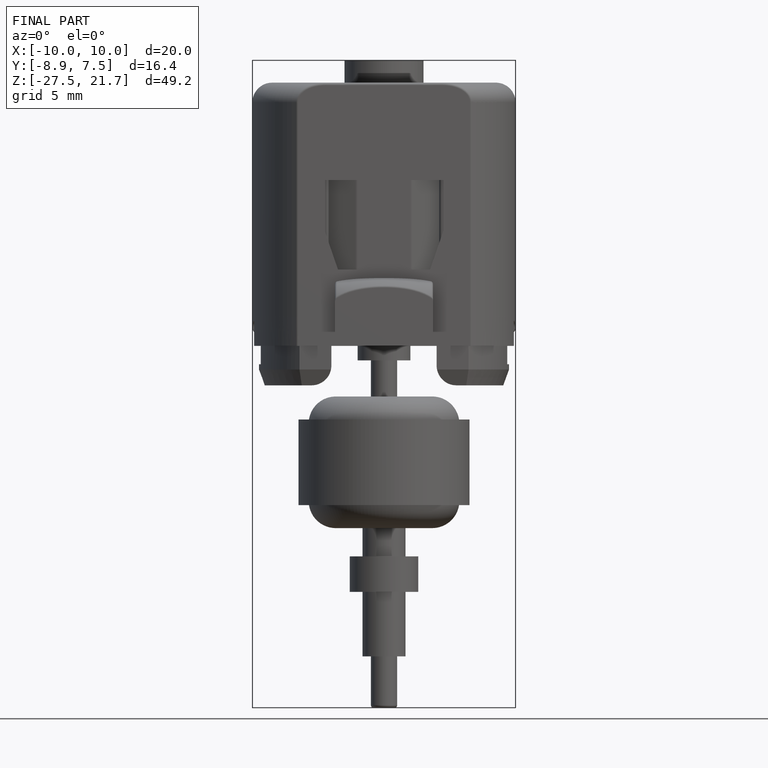
[diagram: finished part — front view with bounding-box wireframe]
